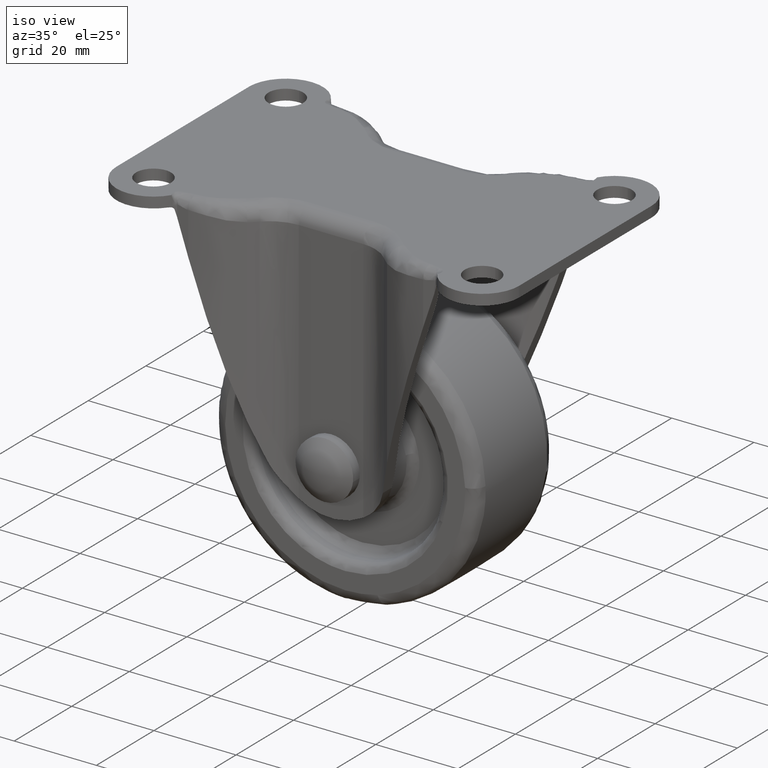
[diagram: clean part render]
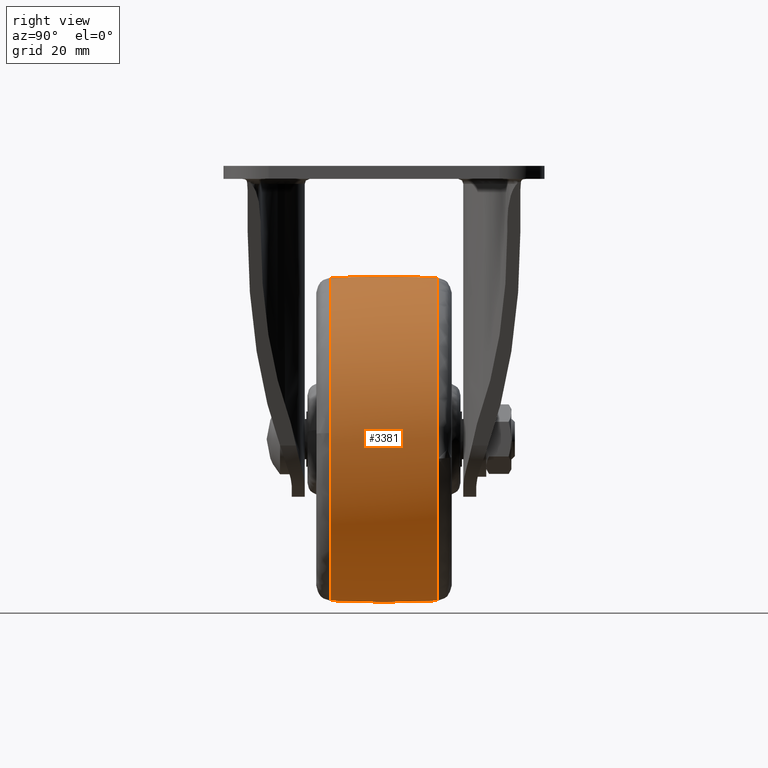
[diagram: tour spotlight — one face highlighted and labeled with its STEP entity id]
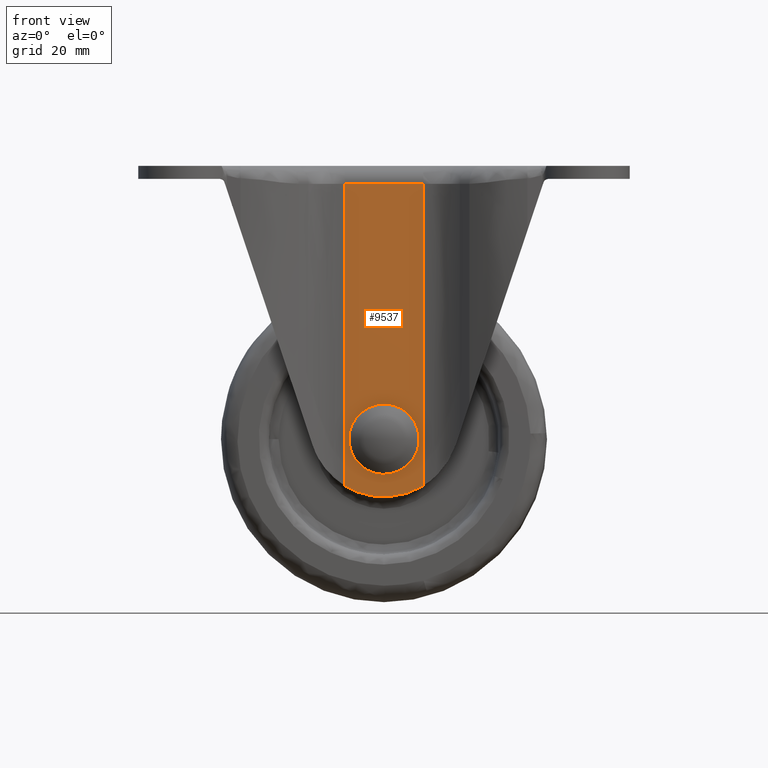
[diagram: tour spotlight — one face highlighted and labeled with its STEP entity id]
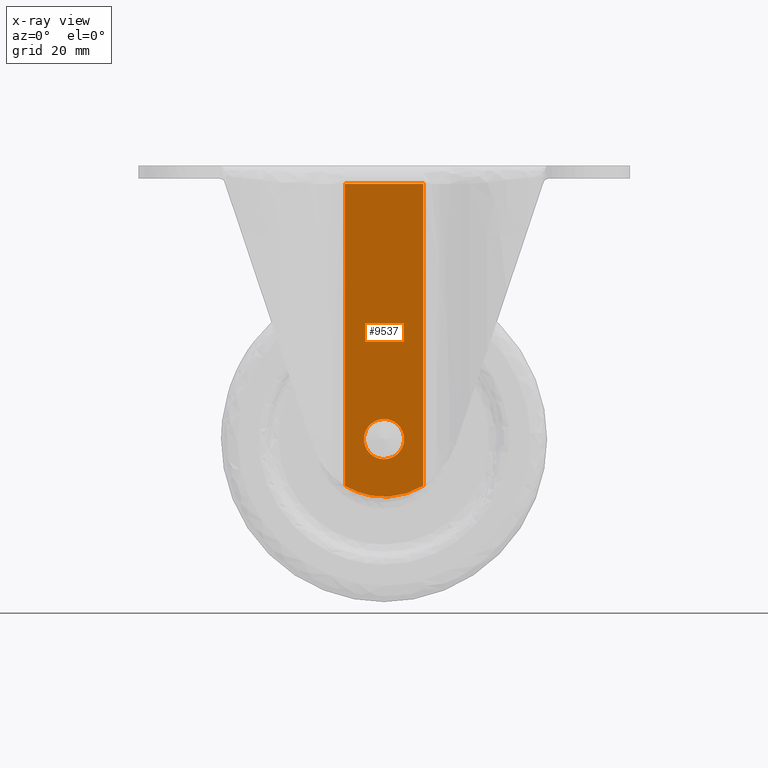
[diagram: x-ray of the same camera — body ghosted, this tour face saturated]
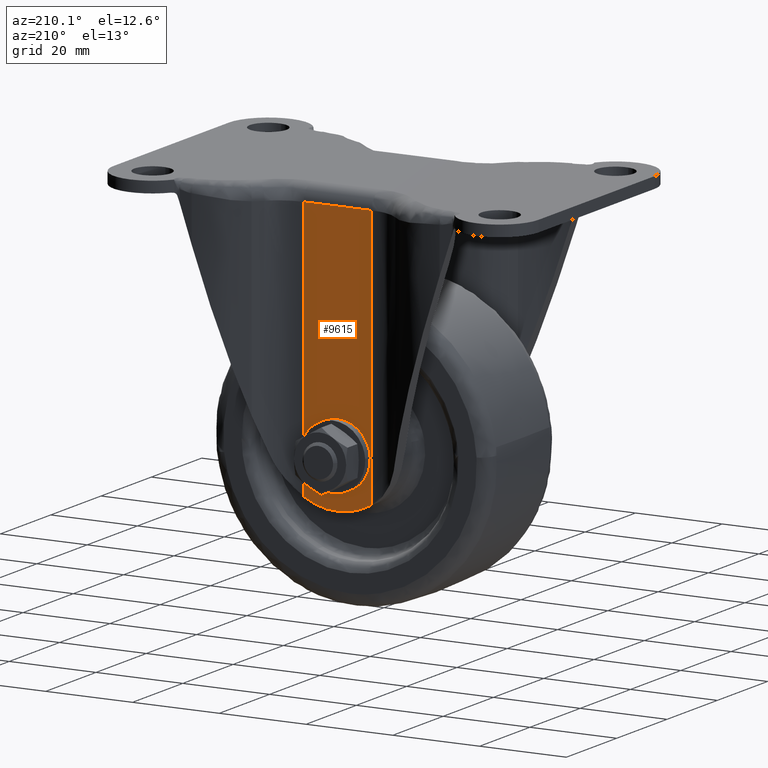
[diagram: tour spotlight — one face highlighted and labeled with its STEP entity id]
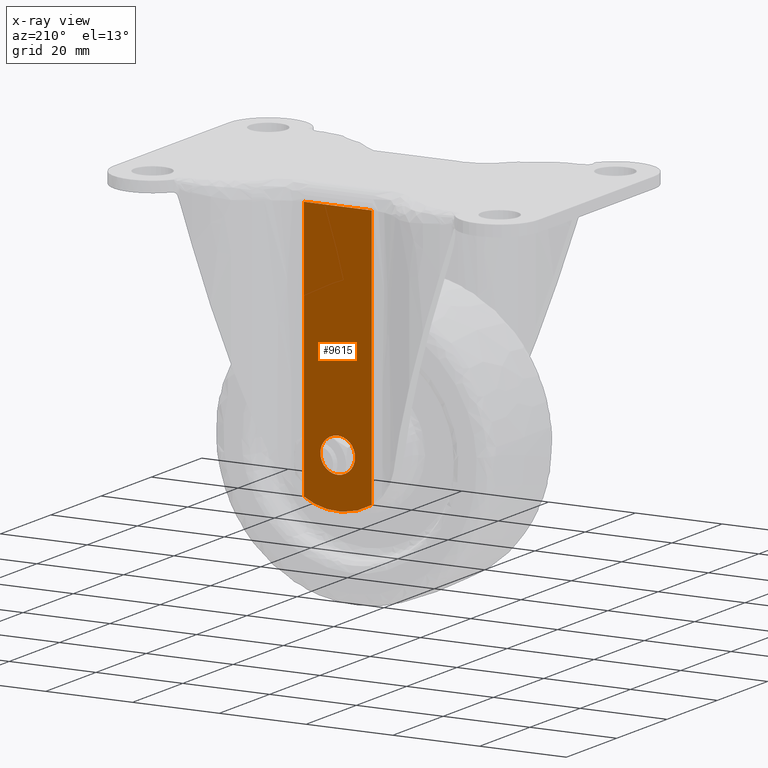
[diagram: x-ray of the same camera — body ghosted, this tour face saturated]
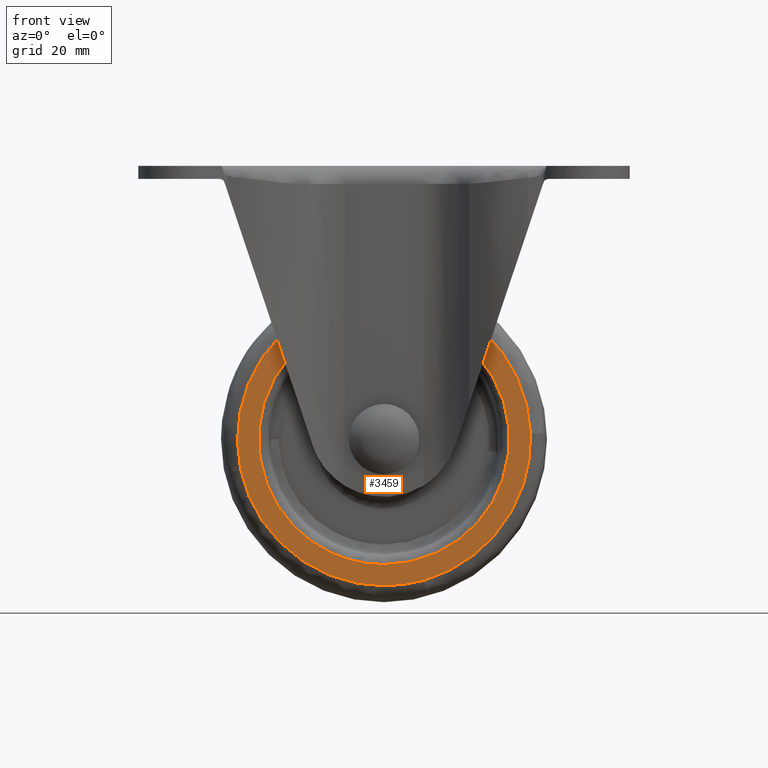
[diagram: tour spotlight — one face highlighted and labeled with its STEP entity id]
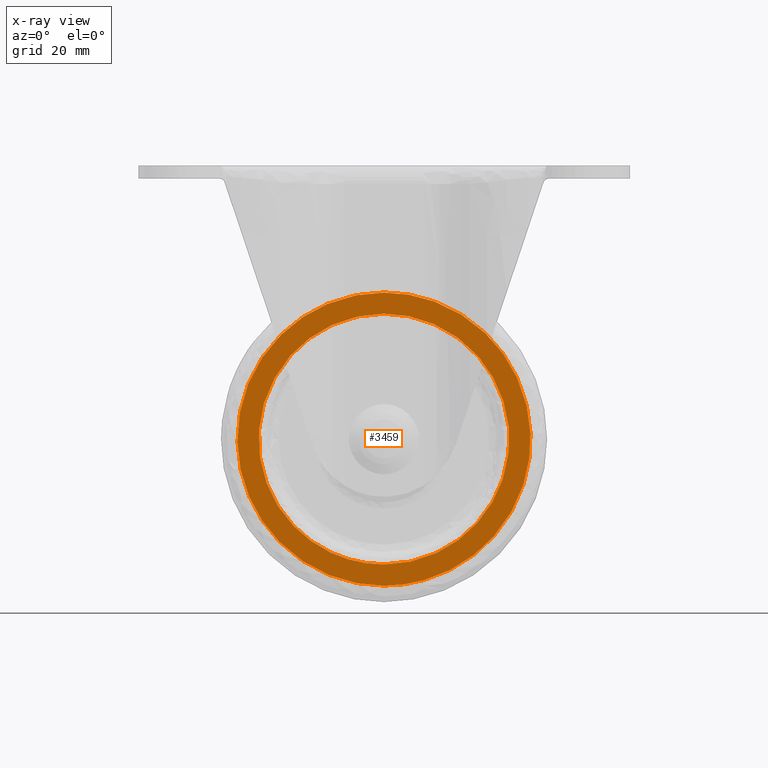
[diagram: x-ray of the same camera — body ghosted, this tour face saturated]
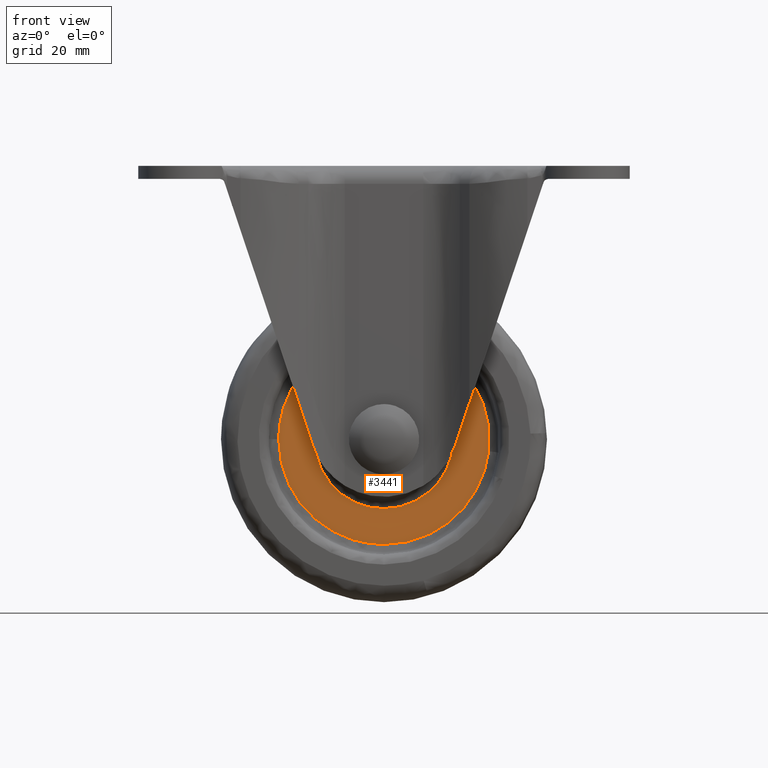
[diagram: tour spotlight — one face highlighted and labeled with its STEP entity id]
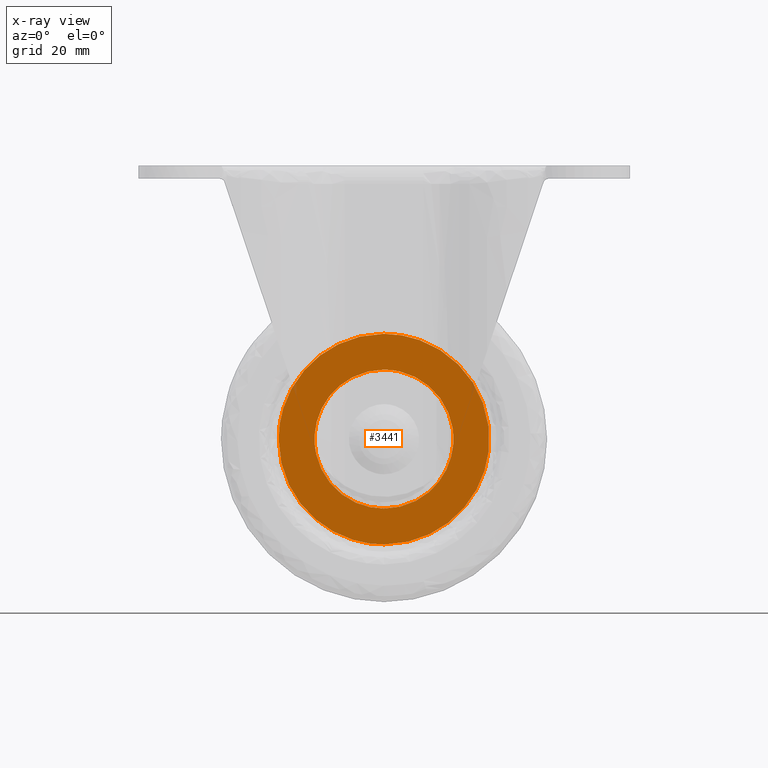
[diagram: x-ray of the same camera — body ghosted, this tour face saturated]
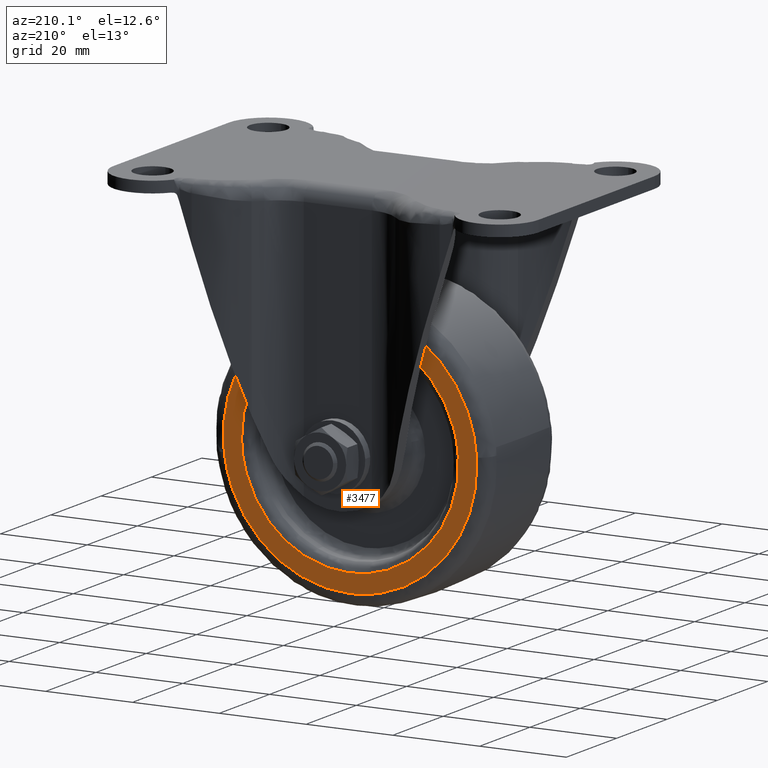
[diagram: tour spotlight — one face highlighted and labeled with its STEP entity id]
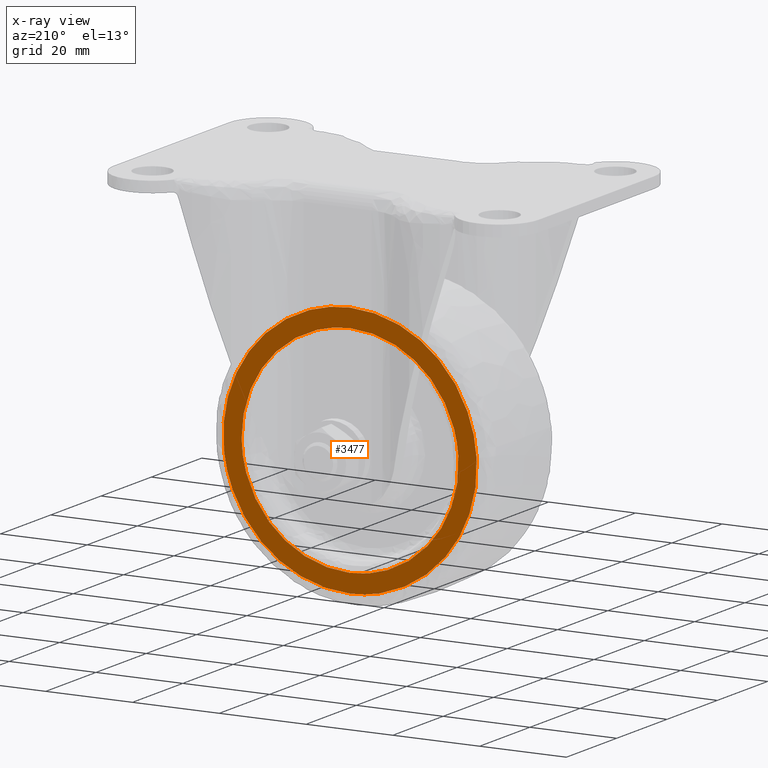
[diagram: x-ray of the same camera — body ghosted, this tour face saturated]
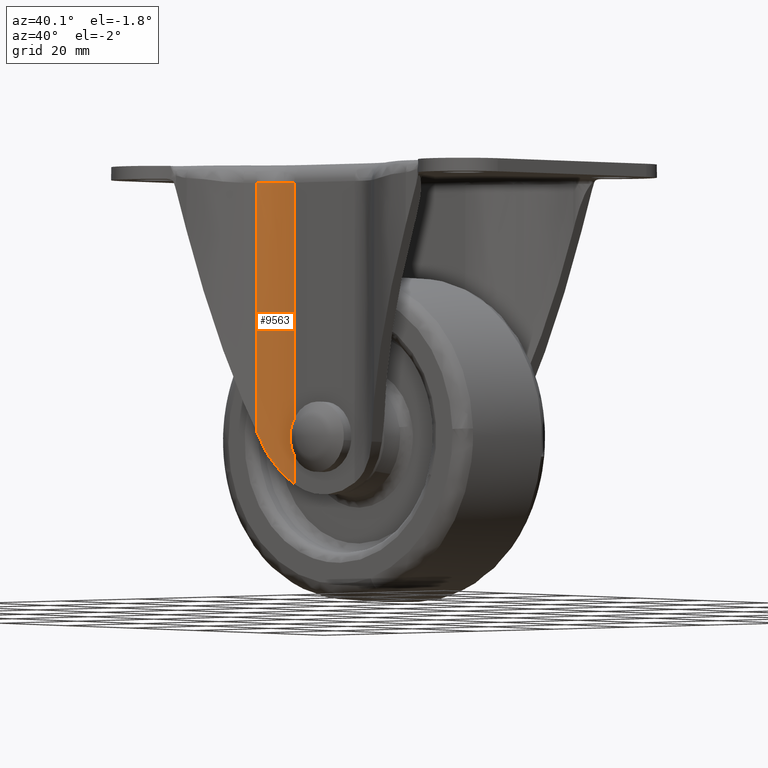
[diagram: tour spotlight — one face highlighted and labeled with its STEP entity id]
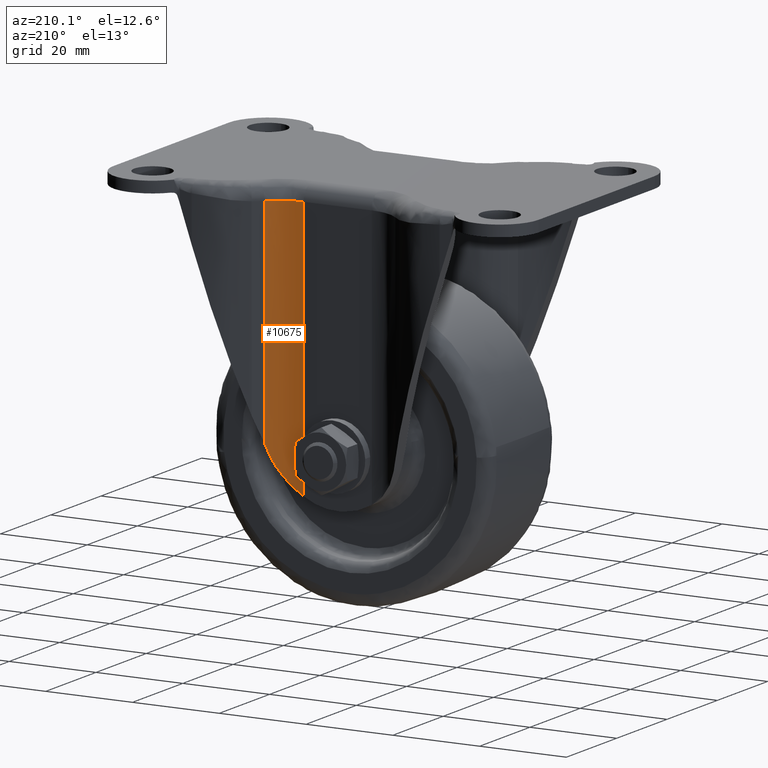
[diagram: tour spotlight — one face highlighted and labeled with its STEP entity id]
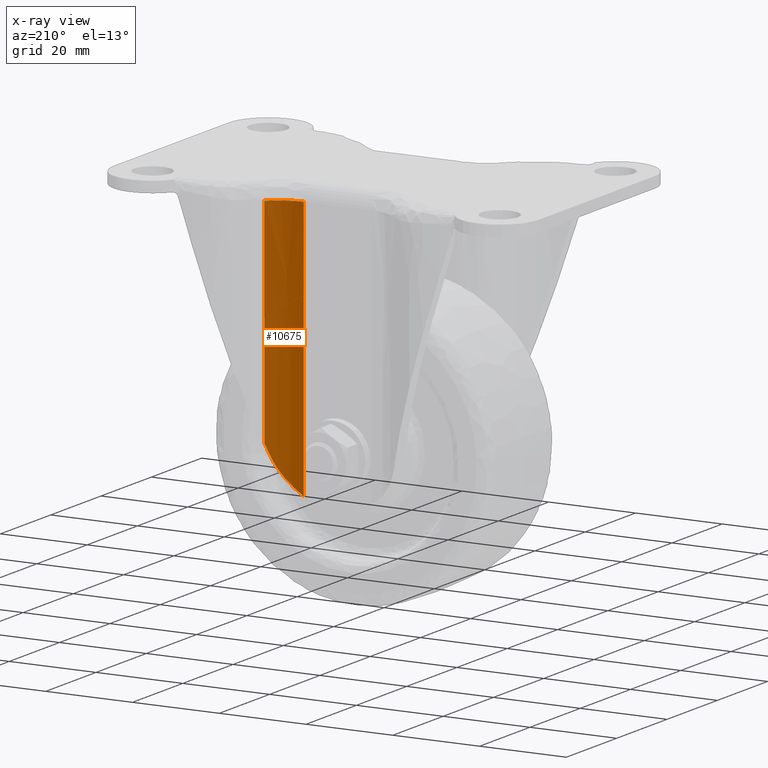
[diagram: x-ray of the same camera — body ghosted, this tour face saturated]
A machine part: a face-by-face anatomy tour. The part has 204 B-rep faces; the first image is the clean iso view, then the 8 largest visible faces are spotlighted one at a time (largest first), each with its STEP entity span.

Face 1 — right view, entity #3381. In plain terms, the highlighted face is a freeform B-spline surface patch.
Definition (entity closure, byte-faithful):
#2270=CARTESIAN_POINT('',(8.716848317631655,-10.659899442553820,-85.514009804543093));
#2271=VERTEX_POINT('',#2270);
#2285=CARTESIAN_POINT('',(32.192824167387677,-10.659899442543059,-53.285783842636647));
#2286=VERTEX_POINT('',#2285);
#2287=CARTESIAN_POINT('',(8.716848317631655,-10.659899442553824,-85.514009804543093));
#2288=CARTESIAN_POINT('',(32.215714313845503,-10.659899441852680,-78.909380096386755));
#2289=CARTESIAN_POINT('',(32.215714313845503,-10.659899441852680,-54.500000000000000));
#2290=CARTESIAN_POINT('',(32.215714313845503,-10.659899441852678,-53.892676161195816));
#2291=CARTESIAN_POINT('',(32.192824167387684,-10.659899442543063,-53.285783842636647));
#2299=(BOUNDED_CURVE()B_SPLINE_CURVE(2,(#2287,#2288,#2289,#2290,#2291),.UNSPECIFIED.,.F.,.U.)B_SPLINE_CURVE_WITH_KNOTS((3,2,3),(0.046107938914526,0.250000000000000,0.256613471417733),.UNSPECIFIED.)CURVE()GEOMETRIC_REPRESENTATION_ITEM()RATIONAL_B_SPLINE_CURVE((0.911887947010307,0.761125591752665,1.0,0.992251836275718,0.984913610626079))REPRESENTATION_ITEM(''));
#2300=EDGE_CURVE('',#2271,#2286,#2299,.T.);
#2399=CARTESIAN_POINT('',(0.0,-10.659899622363509,-22.284285695789279));
#2400=VERTEX_POINT('',#2399);
#2401=CARTESIAN_POINT('',(32.192824167387677,-10.659899442543061,-53.285783842636640));
#2402=CARTESIAN_POINT('',(31.023541231273981,-10.659899448532654,-22.284285686511033));
#2403=CARTESIAN_POINT('',(0.0,-10.659899622363509,-22.284285695789279));
#2411=(BOUNDED_CURVE()B_SPLINE_CURVE(2,(#2401,#2402,#2403),.UNSPECIFIED.,.F.,.U.)B_SPLINE_CURVE_WITH_KNOTS((3,3),(0.256613471417733,0.500000000000000),.UNSPECIFIED.)CURVE()GEOMETRIC_REPRESENTATION_ITEM()RATIONAL_B_SPLINE_CURVE((0.984913610626080,0.714854944910829,1.0))REPRESENTATION_ITEM(''));
#2412=EDGE_CURVE('',#2286,#2400,#2411,.T.);
#2414=CARTESIAN_POINT('',(-32.000243979703463,-10.659899441846189,-50.780237374402979));
#2415=VERTEX_POINT('',#2414);
#2429=CARTESIAN_POINT('',(0.0,-10.659899441852680,-86.715714313845510));
#2430=VERTEX_POINT('',#2429);
#2431=CARTESIAN_POINT('',(-32.000243979703455,-10.659899441846187,-50.780237374402986));
#2432=CARTESIAN_POINT('',(-32.215714313845503,-10.659899441852676,-52.633878038261237));
#2433=CARTESIAN_POINT('',(-32.215714313845503,-10.659899441852680,-54.500000000000000));
#2434=CARTESIAN_POINT('',(-32.215714313845510,-10.659899441852680,-86.715714313845510));
#2435=CARTESIAN_POINT('',(0.0,-10.659899441852680,-86.715714313845510));
#2443=(BOUNDED_CURVE()B_SPLINE_CURVE(2,(#2431,#2432,#2433,#2434,#2435),.UNSPECIFIED.,.F.,.U.)B_SPLINE_CURVE_WITH_KNOTS((3,2,3),(0.729999999998651,0.750000000000000,1.0),.UNSPECIFIED.)CURVE()GEOMETRIC_REPRESENTATION_ITEM()RATIONAL_B_SPLINE_CURVE((0.956886118188004,0.976568542493343,1.0,0.707106781186547,1.0))REPRESENTATION_ITEM(''));
#2444=EDGE_CURVE('',#2415,#2430,#2443,.T.);
#2446=CARTESIAN_POINT('',(0.0,-10.659899441852680,-86.715714313845510));
#2447=CARTESIAN_POINT('',(4.441257636872106,-10.659899441852684,-86.715714313845496));
#2448=CARTESIAN_POINT('',(8.716848317631655,-10.659899442553824,-85.514009804543093));
#2456=(BOUNDED_CURVE()B_SPLINE_CURVE(2,(#2446,#2447,#2448),.UNSPECIFIED.,.F.,.U.)B_SPLINE_CURVE_WITH_KNOTS((3,3),(0.0,0.046107938914526),.UNSPECIFIED.)CURVE()GEOMETRIC_REPRESENTATION_ITEM()RATIONAL_B_SPLINE_CURVE((1.0,0.945981189433882,0.911887947010308))REPRESENTATION_ITEM(''));
#2457=EDGE_CURVE('',#2430,#2271,#2456,.T.);
#2492=CARTESIAN_POINT('',(31.983825766345319,10.659901132118691,-58.358385336708537));
#2493=VERTEX_POINT('',#2492);
#2494=CARTESIAN_POINT('',(0.0,10.659904519073489,-22.284285957153141));
#2495=VERTEX_POINT('',#2494);
#2496=CARTESIAN_POINT('',(31.983825766345316,10.659901132118691,-58.358385336708537));
#2497=CARTESIAN_POINT('',(32.215714365336453,10.659901316556184,-56.436160990790952));
#2498=CARTESIAN_POINT('',(32.215714365336453,10.659901498115421,-54.500000161244799));
#2499=CARTESIAN_POINT('',(32.215714365336453,10.659904519073489,-22.284285957153145));
#2500=CARTESIAN_POINT('',(0.0,10.659904519073489,-22.284285957153141));
#2508=(BOUNDED_CURVE()B_SPLINE_CURVE(2,(#2496,#2497,#2498,#2499,#2500),.UNSPECIFIED.,.F.,.U.)B_SPLINE_CURVE_WITH_KNOTS((3,2,3),(0.229267597024985,0.250000000000000,0.500000000000000),.UNSPECIFIED.)CURVE()GEOMETRIC_REPRESENTATION_ITEM()RATIONAL_B_SPLINE_CURVE((0.955449599164907,0.975710479035641,1.0,0.707106781186547,1.0))REPRESENTATION_ITEM(''));
#2509=EDGE_CURVE('',#2493,#2495,#2508,.T.);
#2558=CARTESIAN_POINT('',(-32.152144012014283,10.659898477184811,-52.477158557965851));
#2559=VERTEX_POINT('',#2558);
#2573=CARTESIAN_POINT('',(-32.000244030849871,10.659898477150801,-50.780237368456362));
#2574=VERTEX_POINT('',#2573);
#2575=CARTESIAN_POINT('',(-32.000244030849878,10.659898477150803,-50.780237368456355));
#2576=CARTESIAN_POINT('',(-32.098637001431136,10.659898477153796,-51.626688978759717));
#2577=CARTESIAN_POINT('',(-32.152144012014283,10.659898477184818,-52.477158557965851));
#2585=(BOUNDED_CURVE()B_SPLINE_CURVE(2,(#2575,#2576,#2577),.UNSPECIFIED.,.F.,.U.)B_SPLINE_CURVE_WITH_KNOTS((3,3),(0.729999999998637,0.739031910739875),.UNSPECIFIED.)CURVE()GEOMETRIC_REPRESENTATION_ITEM()RATIONAL_B_SPLINE_CURVE((0.956886118187978,0.965774613162226,0.975427680452973))REPRESENTATION_ITEM(''));
#2586=EDGE_CURVE('',#2574,#2559,#2585,.T.);
#2627=CARTESIAN_POINT('',(0.0,10.659898477157361,-86.715714365336453));
#2628=VERTEX_POINT('',#2627);
#2629=CARTESIAN_POINT('',(0.0,10.659898477157361,-86.715714365336453));
#2630=CARTESIAN_POINT('',(28.562924924722971,10.659898477157359,-86.715714365336453));
#2631=CARTESIAN_POINT('',(31.983825766345316,10.659901132118691,-58.358385336708537));
#2639=(BOUNDED_CURVE()B_SPLINE_CURVE(2,(#2629,#2630,#2631),.UNSPECIFIED.,.F.,.U.)B_SPLINE_CURVE_WITH_KNOTS((3,3),(0.0,0.229267597024985),.UNSPECIFIED.)CURVE()GEOMETRIC_REPRESENTATION_ITEM()RATIONAL_B_SPLINE_CURVE((1.0,0.731396302150907,0.955449599164907))REPRESENTATION_ITEM(''));
#2640=EDGE_CURVE('',#2628,#2493,#2639,.T.);
#2642=CARTESIAN_POINT('',(-32.152144012014276,10.659898477184818,-52.477158557965851));
#2643=CARTESIAN_POINT('',(-32.215714365336453,10.659898477157359,-53.487580389532376));
#2644=CARTESIAN_POINT('',(-32.215714365336453,10.659898477157361,-54.500000000000000));
#2645=CARTESIAN_POINT('',(-32.215714365336453,10.659898477157359,-86.715714365336453));
#2646=CARTESIAN_POINT('',(0.0,10.659898477157361,-86.715714365336453));
#2654=(BOUNDED_CURVE()B_SPLINE_CURVE(2,(#2642,#2643,#2644,#2645,#2646),.UNSPECIFIED.,.F.,.U.)B_SPLINE_CURVE_WITH_KNOTS((3,2,3),(0.739031910739874,0.750000000000000,1.0),.UNSPECIFIED.)CURVE()GEOMETRIC_REPRESENTATION_ITEM()RATIONAL_B_SPLINE_CURVE((0.975427680452972,0.987150084129474,1.0,0.707106781186547,1.0))REPRESENTATION_ITEM(''));
#2655=EDGE_CURVE('',#2559,#2628,#2654,.T.);
#3310=CARTESIAN_POINT('',(-31.941056166359630,-11.723079913277171,-50.787118264817714));
#3311=CARTESIAN_POINT('',(-32.624788837057352,-3.235687E-014,-50.707640036810496));
#3312=CARTESIAN_POINT('',(-31.941056166359630,11.723079913277102,-50.787118264817714));
#3313=CARTESIAN_POINT('',(-32.156127873268424,-11.723079913277170,-52.637330030270427));
#3314=CARTESIAN_POINT('',(-32.844464385235234,-3.566781E-014,-52.597457575634031));
#3315=CARTESIAN_POINT('',(-32.156127873268446,11.723079913277104,-52.637330030270434));
#3316=CARTESIAN_POINT('',(-32.156127873268439,-11.723079913277164,-54.500000000000014));
#3317=CARTESIAN_POINT('',(-32.844464385235220,-2.902672E-014,-54.500000000000000));
#3318=CARTESIAN_POINT('',(-32.156127873268439,11.723079913277111,-54.500000000000014));
#3319=CARTESIAN_POINT('',(-32.156127873268424,-11.723079913277177,-86.656127873268431));
#3320=CARTESIAN_POINT('',(-32.844464385235227,-3.968165E-014,-87.344464385235227));
#3321=CARTESIAN_POINT('',(-32.156127873268431,11.723079913277099,-86.656127873268446));
#3322=CARTESIAN_POINT('',(0.0,-11.723079913277164,-86.656127873268431));
#3323=CARTESIAN_POINT('',(0.0,-2.902672E-014,-87.344464385235227));
#3324=CARTESIAN_POINT('',(0.0,11.723079913277111,-86.656127873268431));
#3325=CARTESIAN_POINT('',(32.156127873268439,-11.723079913277177,-86.656127873268431));
#3326=CARTESIAN_POINT('',(32.844464385235227,-3.968165E-014,-87.344464385235213));
#3327=CARTESIAN_POINT('',(32.156127873268431,11.723079913277099,-86.656127873268417));
#3328=CARTESIAN_POINT('',(32.156127873268439,-11.723079913277164,-54.500000000000014));
#3329=CARTESIAN_POINT('',(32.844464385235220,-2.902672E-014,-54.500000000000000));
#3330=CARTESIAN_POINT('',(32.156127873268439,11.723079913277111,-54.500000000000014));
#3331=CARTESIAN_POINT('',(32.156127873268424,-11.723079913277177,-22.343872126731565));
#3332=CARTESIAN_POINT('',(32.844464385235227,-3.968165E-014,-21.655535614764780));
#3333=CARTESIAN_POINT('',(32.156127873268431,11.723079913277099,-22.343872126731569));
#3334=CARTESIAN_POINT('',(0.0,-11.723079913277164,-22.343872126731565));
#3335=CARTESIAN_POINT('',(0.0,-2.902672E-014,-21.655535614764773));
#3336=CARTESIAN_POINT('',(0.0,11.723079913277111,-22.343872126731565));
#3344=(BOUNDED_SURFACE()B_SPLINE_SURFACE(2,2,((#3310,#3313,#3316,#3319,#3322,#3325,#3328,#3331,#3334),(#3311,#3314,#3317,#3320,#3323,#3326,#3329,#3332,#3335),(#3312,#3315,#3318,#3321,#3324,#3327,#3330,#3333,#3336)),.UNSPECIFIED.,.F.,.F.,.U.)B_SPLINE_SURFACE_WITH_KNOTS((3,3),(3,2,2,2,3),(0.0,23.466333371461872),(0.0,4.307820149998688,58.155583258501061,112.003346367003400,165.851109475505810),.UNSPECIFIED.)GEOMETRIC_REPRESENTATION_ITEM()RATIONAL_B_SPLINE_SURFACE(((0.879895557524248,0.897994340967783,0.919540510877728,0.650213330817384,0.919540510877728,0.650213330817384,0.919540510877728,0.650213330817384,0.919540510877728),(0.878382699740911,0.896450364848676,0.917959489122272,0.649095379612897,0.917959489122272,0.649095379612897,0.917959489122272,0.649095379612897,0.917959489122272),(0.879895557524248,0.897994340967783,0.919540510877728,0.650213330817384,0.919540510877728,0.650213330817384,0.919540510877728,0.650213330817384,0.919540510877728)))REPRESENTATION_ITEM('')SURFACE());
#3345=ORIENTED_EDGE('',*,*,#2444,.F.);
#3346=CARTESIAN_POINT('',(-32.000243979703463,-10.659899441846187,-50.780237374402979));
#3347=CARTESIAN_POINT('',(-32.565414476068568,-0.000000483721906,-50.714540997631907));
#3348=CARTESIAN_POINT('',(-32.000244030849871,10.659898477150801,-50.780237368456341));
#3356=(BOUNDED_CURVE()B_SPLINE_CURVE(2,(#3346,#3347,#3348),.UNSPECIFIED.,.F.,.U.)B_SPLINE_CURVE_WITH_KNOTS((3,3),(0.455160694111944,0.544839301824430),.UNSPECIFIED.)CURVE()GEOMETRIC_REPRESENTATION_ITEM()RATIONAL_B_SPLINE_CURVE((0.879764382140245,0.878513860091758,0.879764382026914))REPRESENTATION_ITEM(''));
#3357=EDGE_CURVE('',#2415,#2574,#3356,.T.);
#3358=ORIENTED_EDGE('',*,*,#3357,.T.);
#3359=ORIENTED_EDGE('',*,*,#2586,.T.);
#3360=ORIENTED_EDGE('',*,*,#2655,.T.);
#3361=ORIENTED_EDGE('',*,*,#2640,.T.);
#3362=ORIENTED_EDGE('',*,*,#2509,.T.);
#3363=CARTESIAN_POINT('',(0.0,-10.659899622363508,-22.284285695789276));
#3364=CARTESIAN_POINT('',(0.0,0.000002364817637,-21.715309501336133));
#3365=CARTESIAN_POINT('',(0.0,10.659904519073489,-22.284285957153134));
#3373=(BOUNDED_CURVE()B_SPLINE_CURVE(2,(#3363,#3364,#3365),.UNSPECIFIED.,.F.,.U.)B_SPLINE_CURVE_WITH_KNOTS((3,3),(0.455160692591143,0.544839327275097),.UNSPECIFIED.)CURVE()GEOMETRIC_REPRESENTATION_ITEM()RATIONAL_B_SPLINE_CURVE((0.919403433133895,0.918096566576599,0.919403433712907))REPRESENTATION_ITEM(''));
#3374=EDGE_CURVE('',#2400,#2495,#3373,.T.);
#3375=ORIENTED_EDGE('',*,*,#3374,.F.);
#3376=ORIENTED_EDGE('',*,*,#2412,.F.);
#3377=ORIENTED_EDGE('',*,*,#2300,.F.);
#3378=ORIENTED_EDGE('',*,*,#2457,.F.);
#3379=EDGE_LOOP('',(#3345,#3358,#3359,#3360,#3361,#3362,#3375,#3376,#3377,#3378));
#3380=FACE_OUTER_BOUND('',#3379,.T.);
#3381=ADVANCED_FACE('',(#3380),#3344,.T.);

Face 2 — front view, entity #9537. An x-ray twin of the same camera follows (body ghosted, this face saturated) — the face is partly hidden behind the body. In plain terms, the highlighted face is a freeform B-spline surface patch.
Definition (entity closure, byte-faithful):
#3632=CARTESIAN_POINT('',(3.972038105441392,-18.399999999999999,-54.972136938738700));
#3633=VERTEX_POINT('',#3632);
#3639=CARTESIAN_POINT('',(0.0,-18.399999999999999,-50.500000000000000));
#3640=VERTEX_POINT('',#3639);
#3641=CARTESIAN_POINT('',(3.972038105441392,-18.399999999999999,-54.972136938738700));
#3642=CARTESIAN_POINT('',(4.0,-18.399999999999999,-54.736896478720489));
#3643=CARTESIAN_POINT('',(4.0,-18.399999999999999,-54.500000000000000));
#3644=CARTESIAN_POINT('',(4.000000000000000,-18.399999999999991,-50.499999999999993));
#3645=CARTESIAN_POINT('',(0.0,-18.399999999999999,-50.500000000000000));
#3653=(BOUNDED_CURVE()B_SPLINE_CURVE(2,(#3641,#3642,#3643,#3644,#3645),.UNSPECIFIED.,.F.,.U.)B_SPLINE_CURVE_WITH_KNOTS((3,2,3),(0.229562473506142,0.250000000000000,0.500000000000000),.UNSPECIFIED.)CURVE()GEOMETRIC_REPRESENTATION_ITEM()RATIONAL_B_SPLINE_CURVE((0.956026754169261,0.976055948322515,1.0,0.707106781186548,1.0))REPRESENTATION_ITEM(''));
#3654=EDGE_CURVE('',#3633,#3640,#3653,.T.);
#3656=CARTESIAN_POINT('',(-3.992539193676789,-18.399999999999999,-54.255805841685977));
#3657=VERTEX_POINT('',#3656);
#3658=CARTESIAN_POINT('',(0.0,-18.399999999999999,-50.500000000000000));
#3659=CARTESIAN_POINT('',(-3.762824267293059,-18.399999999999995,-50.500000000000000));
#3660=CARTESIAN_POINT('',(-3.992539193676789,-18.399999999999999,-54.255805841685991));
#3668=(BOUNDED_CURVE()B_SPLINE_CURVE(2,(#3658,#3659,#3660),.UNSPECIFIED.,.F.,.U.)B_SPLINE_CURVE_WITH_KNOTS((3,3),(0.500000000000000,0.739332962226877),.UNSPECIFIED.)CURVE()GEOMETRIC_REPRESENTATION_ITEM()RATIONAL_B_SPLINE_CURVE((1.0,0.719603993300846,0.976072041640858))REPRESENTATION_ITEM(''));
#3669=EDGE_CURVE('',#3640,#3657,#3668,.T.);
#3743=CARTESIAN_POINT('',(0.0,-18.399999999999999,-58.500000000000000));
#3744=VERTEX_POINT('',#3743);
#3745=CARTESIAN_POINT('',(-3.992539193676790,-18.399999999999995,-54.255805841685991));
#3746=CARTESIAN_POINT('',(-4.0,-18.399999999999999,-54.377788946630567));
#3747=CARTESIAN_POINT('',(-4.0,-18.399999999999999,-54.500000000000000));
#3748=CARTESIAN_POINT('',(-4.000000000000000,-18.399999999999991,-58.499999999999993));
#3749=CARTESIAN_POINT('',(0.0,-18.399999999999999,-58.500000000000000));
#3757=(BOUNDED_CURVE()B_SPLINE_CURVE(2,(#3745,#3746,#3747,#3748,#3749),.UNSPECIFIED.,.F.,.U.)B_SPLINE_CURVE_WITH_KNOTS((3,2,3),(0.739332962226877,0.750000000000000,1.0),.UNSPECIFIED.)CURVE()GEOMETRIC_REPRESENTATION_ITEM()RATIONAL_B_SPLINE_CURVE((0.976072041640859,0.987502787885702,1.0,0.707106781186548,1.0))REPRESENTATION_ITEM(''));
#3758=EDGE_CURVE('',#3657,#3744,#3757,.T.);
#3760=CARTESIAN_POINT('',(0.0,-18.399999999999999,-58.500000000000000));
#3761=CARTESIAN_POINT('',(3.552698103604312,-18.399999999999995,-58.499999999999993));
#3762=CARTESIAN_POINT('',(3.972038105441392,-18.399999999999999,-54.972136938738700));
#3770=(BOUNDED_CURVE()B_SPLINE_CURVE(2,(#3760,#3761,#3762),.UNSPECIFIED.,.F.,.U.)B_SPLINE_CURVE_WITH_KNOTS((3,3),(0.0,0.229562473506142),.UNSPECIFIED.)CURVE()GEOMETRIC_REPRESENTATION_ITEM()RATIONAL_B_SPLINE_CURVE((1.0,0.731050832864033,0.956026754169261))REPRESENTATION_ITEM(''));
#3771=EDGE_CURVE('',#3744,#3633,#3770,.T.);
#5762=CARTESIAN_POINT('',(7.828796000000181,-18.399999999999999,-3.600000000000050));
#5763=VERTEX_POINT('',#5762);
#5825=CARTESIAN_POINT('',(-7.828835999999799,-18.399999999999999,-3.600000000000050));
#5826=VERTEX_POINT('',#5825);
#5842=CARTESIAN_POINT('',(7.828796000000181,-18.399999999999999,-3.600000000000050));
#5843=CARTESIAN_POINT('',(-7.828835999999799,-18.399999999999999,-3.600000000000050));
#5844=QUASI_UNIFORM_CURVE('',1,(#5842,#5843),.UNSPECIFIED.,.F.,.U.);
#5845=EDGE_CURVE('',#5763,#5826,#5844,.T.);
#8323=CARTESIAN_POINT('',(-7.828835999999799,-18.399999999999999,-63.794895458792993));
#8324=VERTEX_POINT('',#8323);
#8439=CARTESIAN_POINT('',(7.828796000000181,-18.399999999999999,-63.794919933581397));
#8440=VERTEX_POINT('',#8439);
#8471=CARTESIAN_POINT('',(7.828796000000209,-18.399999999999999,-63.794919933581440));
#8472=CARTESIAN_POINT('',(-0.000027487690727,-18.400000000000006,-68.585123124617780));
#8473=CARTESIAN_POINT('',(-7.828835999999803,-18.399999999999999,-63.794895458793022));
#8481=(BOUNDED_CURVE()B_SPLINE_CURVE(2,(#8471,#8472,#8473),.UNSPECIFIED.,.F.,.U.)CURVE()GEOMETRIC_REPRESENTATION_ITEM()QUASI_UNIFORM_CURVE()RATIONAL_B_SPLINE_CURVE((1.0,0.852993786711757,1.0))REPRESENTATION_ITEM(''));
#8482=EDGE_CURVE('',#8440,#8324,#8481,.T.);
#9512=CARTESIAN_POINT('',(-8.610934688052272,-18.399999999999999,-0.483119713382858));
#9513=CARTESIAN_POINT('',(-8.610934688052272,-18.399999999999999,-69.116877834727248));
#9514=CARTESIAN_POINT('',(8.610895108023069,-18.399999999999999,-0.483119713382858));
#9515=CARTESIAN_POINT('',(8.610895108023069,-18.399999999999999,-69.116877834727248));
#9516=B_SPLINE_SURFACE_WITH_KNOTS('',1,1,((#9512,#9514),(#9513,#9515)),.UNSPECIFIED.,.F.,.F.,.U.,(2,2),(2,2),(0.0,68.633758121344385),(0.0,17.221829796075340),.UNSPECIFIED.);
#9517=CARTESIAN_POINT('',(7.828796000000181,-18.399999999999999,-63.794919933581397));
#9518=CARTESIAN_POINT('',(7.828796000000181,-18.399999999999999,-3.600000000000050));
#9519=QUASI_UNIFORM_CURVE('',1,(#9517,#9518),.UNSPECIFIED.,.F.,.U.);
#9520=EDGE_CURVE('',#8440,#5763,#9519,.T.);
#9521=ORIENTED_EDGE('',*,*,#9520,.T.);
#9522=ORIENTED_EDGE('',*,*,#5845,.T.);
#9523=CARTESIAN_POINT('',(-7.828835999999799,-18.399999999999999,-63.794895458792993));
#9524=CARTESIAN_POINT('',(-7.828835999999799,-18.399999999999999,-3.600000000000050));
#9525=QUASI_UNIFORM_CURVE('',1,(#9523,#9524),.UNSPECIFIED.,.F.,.U.);
#9526=EDGE_CURVE('',#8324,#5826,#9525,.T.);
#9527=ORIENTED_EDGE('',*,*,#9526,.F.);
#9528=ORIENTED_EDGE('',*,*,#8482,.F.);
#9529=EDGE_LOOP('',(#9521,#9522,#9527,#9528));
#9530=FACE_OUTER_BOUND('',#9529,.T.);
#9531=ORIENTED_EDGE('',*,*,#3669,.F.);
#9532=ORIENTED_EDGE('',*,*,#3654,.F.);
#9533=ORIENTED_EDGE('',*,*,#3771,.F.);
#9534=ORIENTED_EDGE('',*,*,#3758,.F.);
#9535=EDGE_LOOP('',(#9531,#9532,#9533,#9534));
#9536=FACE_BOUND('',#9535,.T.);
#9537=ADVANCED_FACE('',(#9530,#9536),#9516,.T.);

Face 3 — auxiliary view, entity #9615. An x-ray twin of the same camera follows (body ghosted, this face saturated) — the face is partly hidden behind the body. In plain terms, the highlighted face is a freeform B-spline surface patch.
Definition (entity closure, byte-faithful):
#3829=CARTESIAN_POINT('',(-3.987669334926362,18.399999999999999,-54.813836382989507));
#3830=VERTEX_POINT('',#3829);
#3836=CARTESIAN_POINT('',(0.0,18.399999999999999,-50.500000000000000));
#3837=VERTEX_POINT('',#3836);
#3838=CARTESIAN_POINT('',(-3.987669334926362,18.399999999999999,-54.813836382989521));
#3839=CARTESIAN_POINT('',(-4.000000000000000,18.400000000000002,-54.657160428109165));
#3840=CARTESIAN_POINT('',(-4.0,18.399999999999999,-54.500000000000000));
#3841=CARTESIAN_POINT('',(-4.000000000000000,18.399999999999991,-50.499999999999993));
#3842=CARTESIAN_POINT('',(0.0,18.399999999999999,-50.500000000000000));
#3850=(BOUNDED_CURVE()B_SPLINE_CURVE(2,(#3838,#3839,#3840,#3841,#3842),.UNSPECIFIED.,.F.,.U.)B_SPLINE_CURVE_WITH_KNOTS((3,2,3),(0.736331300626049,0.750000000000000,1.0),.UNSPECIFIED.)CURVE()GEOMETRIC_REPRESENTATION_ITEM()RATIONAL_B_SPLINE_CURVE((0.969723356157797,0.983986122573481,1.0,0.707106781186548,1.0))REPRESENTATION_ITEM(''));
#3851=EDGE_CURVE('',#3830,#3837,#3850,.T.);
#3853=CARTESIAN_POINT('',(3.987669334926362,18.399999999999999,-54.186163617010493));
#3854=VERTEX_POINT('',#3853);
#3855=CARTESIAN_POINT('',(0.0,18.399999999999999,-50.500000000000000));
#3856=CARTESIAN_POINT('',(3.697561966487483,18.399999999999999,-50.500000000000007));
#3857=CARTESIAN_POINT('',(3.987669334926362,18.399999999999999,-54.186163617010486));
#3865=(BOUNDED_CURVE()B_SPLINE_CURVE(2,(#3855,#3856,#3857),.UNSPECIFIED.,.F.,.U.)B_SPLINE_CURVE_WITH_KNOTS((3,3),(0.0,0.236331300626049),.UNSPECIFIED.)CURVE()GEOMETRIC_REPRESENTATION_ITEM()RATIONAL_B_SPLINE_CURVE((1.0,0.723120658613067,0.969723356157796))REPRESENTATION_ITEM(''));
#3866=EDGE_CURVE('',#3837,#3854,#3865,.T.);
#3912=CARTESIAN_POINT('',(0.0,18.399999999999999,-58.500000000000000));
#3913=VERTEX_POINT('',#3912);
#3914=CARTESIAN_POINT('',(3.987669334926362,18.399999999999991,-54.186163617010493));
#3915=CARTESIAN_POINT('',(4.0,18.399999999999995,-54.342839571890828));
#3916=CARTESIAN_POINT('',(4.0,18.399999999999999,-54.500000000000000));
#3917=CARTESIAN_POINT('',(4.000000000000000,18.399999999999991,-58.499999999999993));
#3918=CARTESIAN_POINT('',(0.0,18.399999999999999,-58.500000000000000));
#3926=(BOUNDED_CURVE()B_SPLINE_CURVE(2,(#3914,#3915,#3916,#3917,#3918),.UNSPECIFIED.,.F.,.U.)B_SPLINE_CURVE_WITH_KNOTS((3,2,3),(0.236331300626049,0.250000000000000,0.500000000000000),.UNSPECIFIED.)CURVE()GEOMETRIC_REPRESENTATION_ITEM()RATIONAL_B_SPLINE_CURVE((0.969723356157796,0.983986122573481,1.0,0.707106781186548,1.0))REPRESENTATION_ITEM(''));
#3927=EDGE_CURVE('',#3854,#3913,#3926,.T.);
#3929=CARTESIAN_POINT('',(0.0,18.399999999999999,-58.500000000000000));
#3930=CARTESIAN_POINT('',(-3.697561966487483,18.399999999999995,-58.499999999999993));
#3931=CARTESIAN_POINT('',(-3.987669334926362,18.399999999999999,-54.813836382989521));
#3939=(BOUNDED_CURVE()B_SPLINE_CURVE(2,(#3929,#3930,#3931),.UNSPECIFIED.,.F.,.U.)B_SPLINE_CURVE_WITH_KNOTS((3,3),(0.500000000000000,0.736331300626049),.UNSPECIFIED.)CURVE()GEOMETRIC_REPRESENTATION_ITEM()RATIONAL_B_SPLINE_CURVE((1.0,0.723120658613067,0.969723356157796))REPRESENTATION_ITEM(''));
#3940=EDGE_CURVE('',#3913,#3830,#3939,.T.);
#5015=CARTESIAN_POINT('',(-7.828835999999799,18.399999999999999,-3.600000000000050));
#5016=VERTEX_POINT('',#5015);
#5078=CARTESIAN_POINT('',(7.828796000000181,18.399999999999999,-3.600000000000050));
#5079=VERTEX_POINT('',#5078);
#5095=CARTESIAN_POINT('',(-7.828835999999799,18.399999999999999,-3.600000000000050));
#5096=CARTESIAN_POINT('',(7.828796000000181,18.399999999999999,-3.600000000000050));
#5097=QUASI_UNIFORM_CURVE('',1,(#5095,#5096),.UNSPECIFIED.,.F.,.U.);
#5098=EDGE_CURVE('',#5016,#5079,#5097,.T.);
#8825=CARTESIAN_POINT('',(7.828796000000181,18.399999999999999,-63.794919933581397));
#8826=VERTEX_POINT('',#8825);
#8935=CARTESIAN_POINT('',(-7.828835999999799,18.399999999999999,-63.794895458792993));
#8936=VERTEX_POINT('',#8935);
#8964=CARTESIAN_POINT('',(-7.828835999999813,18.399999999999999,-63.794895458793022));
#8965=CARTESIAN_POINT('',(-0.000027487690738,18.399999999999995,-68.585123124617780));
#8966=CARTESIAN_POINT('',(7.828796000000204,18.399999999999999,-63.794919933581440));
#8974=(BOUNDED_CURVE()B_SPLINE_CURVE(2,(#8964,#8965,#8966),.UNSPECIFIED.,.F.,.U.)CURVE()GEOMETRIC_REPRESENTATION_ITEM()QUASI_UNIFORM_CURVE()RATIONAL_B_SPLINE_CURVE((1.0,0.852993786711757,1.0))REPRESENTATION_ITEM(''));
#8975=EDGE_CURVE('',#8936,#8826,#8974,.T.);
#9584=CARTESIAN_POINT('',(-7.828835999999799,18.399999999999999,-63.794895458792993));
#9585=CARTESIAN_POINT('',(-7.828835999999799,18.399999999999999,-3.600000000000050));
#9586=QUASI_UNIFORM_CURVE('',1,(#9584,#9585),.UNSPECIFIED.,.F.,.U.);
#9587=EDGE_CURVE('',#8936,#5016,#9586,.T.);
#9594=CARTESIAN_POINT('',(-8.610934688052270,18.399999999999999,-69.116880233530182));
#9595=CARTESIAN_POINT('',(-8.610934688052270,18.399999999999999,-0.483118430381298));
#9596=CARTESIAN_POINT('',(8.610895108023069,18.399999999999999,-69.116880233530182));
#9597=CARTESIAN_POINT('',(8.610895108023069,18.399999999999999,-0.483118430381298));
#9598=B_SPLINE_SURFACE_WITH_KNOTS('',1,1,((#9594,#9596),(#9595,#9597)),.UNSPECIFIED.,.F.,.F.,.U.,(2,2),(2,2),(0.0,68.633761803148886),(0.0,17.221829796075340),.UNSPECIFIED.);
#9599=ORIENTED_EDGE('',*,*,#9587,.T.);
#9600=ORIENTED_EDGE('',*,*,#5098,.T.);
#9601=CARTESIAN_POINT('',(7.828796000000181,18.399999999999999,-63.794919933581397));
#9602=CARTESIAN_POINT('',(7.828796000000181,18.399999999999999,-3.600000000000050));
#9603=QUASI_UNIFORM_CURVE('',1,(#9601,#9602),.UNSPECIFIED.,.F.,.U.);
#9604=EDGE_CURVE('',#8826,#5079,#9603,.T.);
#9605=ORIENTED_EDGE('',*,*,#9604,.F.);
#9606=ORIENTED_EDGE('',*,*,#8975,.F.);
#9607=EDGE_LOOP('',(#9599,#9600,#9605,#9606));
#9608=FACE_OUTER_BOUND('',#9607,.T.);
#9609=ORIENTED_EDGE('',*,*,#3940,.F.);
#9610=ORIENTED_EDGE('',*,*,#3927,.F.);
#9611=ORIENTED_EDGE('',*,*,#3866,.F.);
#9612=ORIENTED_EDGE('',*,*,#3851,.F.);
#9613=EDGE_LOOP('',(#9609,#9610,#9611,#9612));
#9614=FACE_BOUND('',#9613,.T.);
#9615=ADVANCED_FACE('',(#9608,#9614),#9598,.T.);

Face 4 — front view, entity #3459. An x-ray twin of the same camera follows (body ghosted, this face saturated) — the face is partly hidden behind the body. In plain terms, the highlighted face is a freeform B-spline surface patch.
Definition (entity closure, byte-faithful):
#2095=CARTESIAN_POINT('',(23.698437999313789,-13.500000000000000,-62.461409188835148));
#2096=VERTEX_POINT('',#2095);
#2112=CARTESIAN_POINT('',(0.0,-13.500000000000000,-29.500000000000000));
#2113=VERTEX_POINT('',#2112);
#2114=CARTESIAN_POINT('',(23.698437999313782,-13.499999999999998,-62.461409188835148));
#2115=CARTESIAN_POINT('',(25.0,-13.500000000000000,-58.587096792254442));
#2116=CARTESIAN_POINT('',(25.0,-13.500000000000000,-54.500000000000000));
#2117=CARTESIAN_POINT('',(25.000000000000004,-13.500000000000000,-29.500000000000000));
#2118=CARTESIAN_POINT('',(0.0,-13.500000000000000,-29.500000000000000));
#2126=(BOUNDED_CURVE()B_SPLINE_CURVE(2,(#2114,#2115,#2116,#2117,#2118),.UNSPECIFIED.,.F.,.U.)B_SPLINE_CURVE_WITH_KNOTS((3,2,3),(0.195865557708802,0.250000000000000,0.500000000000000),.UNSPECIFIED.)CURVE()GEOMETRIC_REPRESENTATION_ITEM()RATIONAL_B_SPLINE_CURVE((0.900621820755694,0.936577555794640,1.0,0.707106781186547,1.0))REPRESENTATION_ITEM(''));
#2127=EDGE_CURVE('',#2096,#2113,#2126,.T.);
#2129=CARTESIAN_POINT('',(-10.644482288880480,-13.500000000000000,-77.120676311029200));
#2130=VERTEX_POINT('',#2129);
#2131=CARTESIAN_POINT('',(0.0,-13.500000000000000,-29.500000000000000));
#2132=CARTESIAN_POINT('',(-25.000000000000004,-13.500000000000000,-29.500000000000000));
#2133=CARTESIAN_POINT('',(-25.0,-13.500000000000000,-54.500000000000000));
#2134=CARTESIAN_POINT('',(-25.000000000000007,-13.500000000000000,-70.365482438545357));
#2135=CARTESIAN_POINT('',(-10.644482288880475,-13.499999999999998,-77.120676311029200));
#2143=(BOUNDED_CURVE()B_SPLINE_CURVE(2,(#2131,#2132,#2133,#2134,#2135),.UNSPECIFIED.,.F.,.U.)B_SPLINE_CURVE_WITH_KNOTS((3,2,3),(0.500000000000000,0.750000000000000,0.927668464635957),.UNSPECIFIED.)CURVE()GEOMETRIC_REPRESENTATION_ITEM()RATIONAL_B_SPLINE_CURVE((1.0,0.707106781186547,1.0,0.791848446044521,0.879552628111911))REPRESENTATION_ITEM(''));
#2144=EDGE_CURVE('',#2113,#2130,#2143,.T.);
#2202=CARTESIAN_POINT('',(0.0,-13.500000000000000,-79.500000000000000));
#2203=VERTEX_POINT('',#2202);
#2204=CARTESIAN_POINT('',(-10.644482288880475,-13.500000000000004,-77.120676311029214));
#2205=CARTESIAN_POINT('',(-5.588162072472434,-13.499999999999995,-79.500000000000000));
#2206=CARTESIAN_POINT('',(0.0,-13.500000000000000,-79.500000000000000));
#2214=(BOUNDED_CURVE()B_SPLINE_CURVE(2,(#2204,#2205,#2206),.UNSPECIFIED.,.F.,.U.)B_SPLINE_CURVE_WITH_KNOTS((3,3),(0.927668464635957,1.0),.UNSPECIFIED.)CURVE()GEOMETRIC_REPRESENTATION_ITEM()RATIONAL_B_SPLINE_CURVE((0.879552628111911,0.915258335142026,1.0))REPRESENTATION_ITEM(''));
#2215=EDGE_CURVE('',#2130,#2203,#2214,.T.);
#2217=CARTESIAN_POINT('',(0.0,-13.500000000000000,-79.500000000000000));
#2218=CARTESIAN_POINT('',(17.974381696727470,-13.499999999999998,-79.500000000000000));
#2219=CARTESIAN_POINT('',(23.698437999313789,-13.500000000000002,-62.461409188835155));
#2227=(BOUNDED_CURVE()B_SPLINE_CURVE(2,(#2217,#2218,#2219),.UNSPECIFIED.,.F.,.U.)B_SPLINE_CURVE_WITH_KNOTS((3,3),(0.0,0.195865557708802),.UNSPECIFIED.)CURVE()GEOMETRIC_REPRESENTATION_ITEM()RATIONAL_B_SPLINE_CURVE((1.0,0.770529225391908,0.900621820755694))REPRESENTATION_ITEM(''));
#2228=EDGE_CURVE('',#2203,#2096,#2227,.T.);
#2251=CARTESIAN_POINT('',(7.906269570274761,-13.500000000000000,-82.630020510910626));
#2252=VERTEX_POINT('',#2251);
#2253=CARTESIAN_POINT('',(29.199217058531470,-13.500000000000000,-53.398693666724071));
#2254=VERTEX_POINT('',#2253);
#2255=CARTESIAN_POINT('',(7.906269570274761,-13.500000000000000,-82.630020510910626));
#2256=CARTESIAN_POINT('',(29.219978649856394,-13.499999999999995,-76.639554576296092));
#2257=CARTESIAN_POINT('',(29.219978649856401,-13.500000000000000,-54.500000000000000));
#2258=CARTESIAN_POINT('',(29.219978649856404,-13.499999999999996,-53.949151136703613));
#2259=CARTESIAN_POINT('',(29.199217058531477,-13.499999999999996,-53.398693666724078));
#2267=(BOUNDED_CURVE()B_SPLINE_CURVE(2,(#2255,#2256,#2257,#2258,#2259),.UNSPECIFIED.,.F.,.U.)B_SPLINE_CURVE_WITH_KNOTS((3,2,3),(0.046107938916028,0.250000000000000,0.256613471420194),.UNSPECIFIED.)CURVE()GEOMETRIC_REPRESENTATION_ITEM()RATIONAL_B_SPLINE_CURVE((0.911887947008086,0.761125591754426,1.0,0.992251836272834,0.984913610620617))REPRESENTATION_ITEM(''));
#2268=EDGE_CURVE('',#2252,#2254,#2267,.T.);
#2353=CARTESIAN_POINT('',(0.0,-13.500000000000000,-83.719978649856401));
#2354=VERTEX_POINT('',#2353);
#2355=CARTESIAN_POINT('',(0.0,-13.500000000000000,-83.719978649856401));
#2356=CARTESIAN_POINT('',(4.028265587040282,-13.500000000000002,-83.719978649856401));
#2357=CARTESIAN_POINT('',(7.906269570274761,-13.500000000000002,-82.630020510910626));
#2365=(BOUNDED_CURVE()B_SPLINE_CURVE(2,(#2355,#2356,#2357),.UNSPECIFIED.,.F.,.U.)B_SPLINE_CURVE_WITH_KNOTS((3,3),(0.0,0.046107938916028),.UNSPECIFIED.)CURVE()GEOMETRIC_REPRESENTATION_ITEM()RATIONAL_B_SPLINE_CURVE((1.0,0.945981189432122,0.911887947008086))REPRESENTATION_ITEM(''));
#2366=EDGE_CURVE('',#2354,#2252,#2365,.T.);
#2368=CARTESIAN_POINT('',(0.0,-13.500000000000000,-25.280021350143599));
#2369=VERTEX_POINT('',#2368);
#2370=CARTESIAN_POINT('',(0.0,-13.500000000000000,-25.280021350143599));
#2371=CARTESIAN_POINT('',(-29.219978649856397,-13.500000000000000,-25.280021350143596));
#2372=CARTESIAN_POINT('',(-29.219978649856401,-13.500000000000000,-54.500000000000000));
#2373=CARTESIAN_POINT('',(-29.219978649856397,-13.500000000000000,-83.719978649856387));
#2374=CARTESIAN_POINT('',(0.0,-13.500000000000000,-83.719978649856401));
#2382=(BOUNDED_CURVE()B_SPLINE_CURVE(2,(#2370,#2371,#2372,#2373,#2374),.UNSPECIFIED.,.F.,.U.)B_SPLINE_CURVE_WITH_KNOTS((3,2,3),(0.500000000000000,0.750000000000000,1.0),.UNSPECIFIED.)CURVE()GEOMETRIC_REPRESENTATION_ITEM()RATIONAL_B_SPLINE_CURVE((1.0,0.707106781186548,1.0,0.707106781186548,1.0))REPRESENTATION_ITEM(''));
#2383=EDGE_CURVE('',#2369,#2354,#2382,.T.);
#2385=CARTESIAN_POINT('',(29.199217058531477,-13.499999999999996,-53.398693666724078));
#2386=CARTESIAN_POINT('',(28.138665608241602,-13.500000000000002,-25.280021350143599));
#2387=CARTESIAN_POINT('',(0.0,-13.500000000000000,-25.280021350143599));
#2395=(BOUNDED_CURVE()B_SPLINE_CURVE(2,(#2385,#2386,#2387),.UNSPECIFIED.,.F.,.U.)B_SPLINE_CURVE_WITH_KNOTS((3,3),(0.256613471420194,0.500000000000000),.UNSPECIFIED.)CURVE()GEOMETRIC_REPRESENTATION_ITEM()RATIONAL_B_SPLINE_CURVE((0.984913610620617,0.714854944913713,1.0))REPRESENTATION_ITEM(''));
#2396=EDGE_CURVE('',#2254,#2369,#2395,.T.);
#3442=CARTESIAN_POINT('',(-32.139020833834202,-13.500000000000000,-86.639054403709068));
#3443=CARTESIAN_POINT('',(-32.139020833834202,-13.500000000000000,-22.360944028809119));
#3444=CARTESIAN_POINT('',(32.138350330942387,-13.500000000000000,-86.639054403709068));
#3445=CARTESIAN_POINT('',(32.138350330942387,-13.500000000000000,-22.360944028809119));
#3446=B_SPLINE_SURFACE_WITH_KNOTS('',1,1,((#3442,#3444),(#3443,#3445)),.UNSPECIFIED.,.F.,.F.,.U.,(2,2),(2,2),(0.0,64.278110374899939),(0.0,64.277371164776596),.UNSPECIFIED.);
#3447=ORIENTED_EDGE('',*,*,#2366,.T.);
#3448=ORIENTED_EDGE('',*,*,#2268,.T.);
#3449=ORIENTED_EDGE('',*,*,#2396,.T.);
#3450=ORIENTED_EDGE('',*,*,#2383,.T.);
#3451=EDGE_LOOP('',(#3447,#3448,#3449,#3450));
#3452=FACE_OUTER_BOUND('',#3451,.T.);
#3453=ORIENTED_EDGE('',*,*,#2144,.F.);
#3454=ORIENTED_EDGE('',*,*,#2127,.F.);
#3455=ORIENTED_EDGE('',*,*,#2228,.F.);
#3456=ORIENTED_EDGE('',*,*,#2215,.F.);
#3457=EDGE_LOOP('',(#3453,#3454,#3455,#3456));
#3458=FACE_BOUND('',#3457,.T.);
#3459=ADVANCED_FACE('',(#3452,#3458),#3446,.F.);

Face 5 — front view, entity #3441. An x-ray twin of the same camera follows (body ghosted, this face saturated) — the face is partly hidden behind the body. In plain terms, the highlighted face is a freeform B-spline surface patch.
Definition (entity closure, byte-faithful):
#1764=CARTESIAN_POINT('',(-13.515506473843690,-7.500000000000000,-57.530651772301852));
#1765=VERTEX_POINT('',#1764);
#1779=CARTESIAN_POINT('',(0.0,-7.500000000000000,-68.351128669312942));
#1780=VERTEX_POINT('',#1779);
#1781=CARTESIAN_POINT('',(-13.515506473843686,-7.500000000000000,-57.530651772301852));
#1782=CARTESIAN_POINT('',(-11.089175093200204,-7.500000000000000,-68.351128669312942));
#1783=CARTESIAN_POINT('',(0.0,-7.500000000000000,-68.351128669312942));
#1791=(BOUNDED_CURVE()B_SPLINE_CURVE(2,(#1781,#1782,#1783),.UNSPECIFIED.,.F.,.U.)B_SPLINE_CURVE_WITH_KNOTS((3,3),(0.787436176722668,1.0),.UNSPECIFIED.)CURVE()GEOMETRIC_REPRESENTATION_ITEM()RATIONAL_B_SPLINE_CURVE((0.925416950449694,0.750965990388034,1.0))REPRESENTATION_ITEM(''));
#1792=EDGE_CURVE('',#1765,#1780,#1791,.T.);
#1794=CARTESIAN_POINT('',(13.666713967763449,-7.500000000000000,-52.247291698461268));
#1795=VERTEX_POINT('',#1794);
#1796=CARTESIAN_POINT('',(0.0,-7.500000000000000,-68.351128669312942));
#1797=CARTESIAN_POINT('',(13.851128669312940,-7.500000000000000,-68.351128669312942));
#1798=CARTESIAN_POINT('',(13.851128669312940,-7.500000000000000,-54.500000000000000));
#1799=CARTESIAN_POINT('',(13.851128669312944,-7.500000000000000,-53.366097427900506));
#1800=CARTESIAN_POINT('',(13.666713967763449,-7.500000000000000,-52.247291698461268));
#1808=(BOUNDED_CURVE()B_SPLINE_CURVE(2,(#1796,#1797,#1798,#1799,#1800),.UNSPECIFIED.,.F.,.U.)B_SPLINE_CURVE_WITH_KNOTS((3,2,3),(0.0,0.250000000000000,0.277993891207297),.UNSPECIFIED.)CURVE()GEOMETRIC_REPRESENTATION_ITEM()RATIONAL_B_SPLINE_CURVE((1.0,0.707106781186548,1.0,0.967203116388725,0.941751131911469))REPRESENTATION_ITEM(''));
#1809=EDGE_CURVE('',#1780,#1795,#1808,.T.);
#1861=CARTESIAN_POINT('',(0.0,-7.500000000000000,-40.648871330687072));
#1862=VERTEX_POINT('',#1861);
#1863=CARTESIAN_POINT('',(13.666713967763449,-7.500000000000000,-52.247291698461268));
#1864=CARTESIAN_POINT('',(11.754926109359575,-7.500000000000001,-40.648871330687051));
#1865=CARTESIAN_POINT('',(0.0,-7.500000000000000,-40.648871330687072));
#1873=(BOUNDED_CURVE()B_SPLINE_CURVE(2,(#1863,#1864,#1865),.UNSPECIFIED.,.F.,.U.)B_SPLINE_CURVE_WITH_KNOTS((3,3),(0.277993891207297,0.500000000000000),.UNSPECIFIED.)CURVE()GEOMETRIC_REPRESENTATION_ITEM()RATIONAL_B_SPLINE_CURVE((0.941751131911469,0.739903664797823,1.0))REPRESENTATION_ITEM(''));
#1874=EDGE_CURVE('',#1795,#1862,#1873,.T.);
#1876=CARTESIAN_POINT('',(0.0,-7.500000000000000,-40.648871330687072));
#1877=CARTESIAN_POINT('',(-13.851128669312940,-7.500000000000000,-40.648871330687058));
#1878=CARTESIAN_POINT('',(-13.851128669312940,-7.500000000000000,-54.500000000000000));
#1879=CARTESIAN_POINT('',(-13.851128669312944,-7.500000000000000,-56.033909720013440));
#1880=CARTESIAN_POINT('',(-13.515506473843688,-7.500000000000000,-57.530651772301852));
#1888=(BOUNDED_CURVE()B_SPLINE_CURVE(2,(#1876,#1877,#1878,#1879,#1880),.UNSPECIFIED.,.F.,.U.)B_SPLINE_CURVE_WITH_KNOTS((3,2,3),(0.500000000000000,0.750000000000000,0.787436176722669),.UNSPECIFIED.)CURVE()GEOMETRIC_REPRESENTATION_ITEM()RATIONAL_B_SPLINE_CURVE((1.0,0.707106781186548,1.0,0.956140790798514,0.925416950449694))REPRESENTATION_ITEM(''));
#1889=EDGE_CURVE('',#1862,#1765,#1888,.T.);
#1925=CARTESIAN_POINT('',(20.859544419300391,-7.500000000000000,-56.924748816578941));
#1926=VERTEX_POINT('',#1925);
#1927=CARTESIAN_POINT('',(0.0,-7.500000000000000,-33.500000000000000));
#1928=VERTEX_POINT('',#1927);
#1929=CARTESIAN_POINT('',(20.859544419300395,-7.500000000000001,-56.924748816578941));
#1930=CARTESIAN_POINT('',(21.000000000000004,-7.500000000000000,-55.716442411205740));
#1931=CARTESIAN_POINT('',(21.0,-7.500000000000000,-54.500000000000000));
#1932=CARTESIAN_POINT('',(21.000000000000007,-7.500000000000000,-33.500000000000000));
#1933=CARTESIAN_POINT('',(0.0,-7.500000000000000,-33.500000000000000));
#1941=(BOUNDED_CURVE()B_SPLINE_CURVE(2,(#1929,#1930,#1931,#1932,#1933),.UNSPECIFIED.,.F.,.U.)B_SPLINE_CURVE_WITH_KNOTS((3,2,3),(0.229999999997586,0.250000000000000,0.500000000000000),.UNSPECIFIED.)CURVE()GEOMETRIC_REPRESENTATION_ITEM()RATIONAL_B_SPLINE_CURVE((0.956886118185909,0.976568542492096,1.0,0.707106781186547,1.0))REPRESENTATION_ITEM(''));
#1942=EDGE_CURVE('',#1926,#1928,#1941,.T.);
#1961=CARTESIAN_POINT('',(-21.000000001039709,-7.500000000000000,-54.500000000000000));
#1962=VERTEX_POINT('',#1961);
#1976=CARTESIAN_POINT('',(0.0,-7.500000000000000,-33.500000000000000));
#1977=CARTESIAN_POINT('',(-20.999999999999904,-7.500000000000000,-33.500000000000007));
#1978=CARTESIAN_POINT('',(-21.000000001039702,-7.500000000000000,-54.500000000000000));
#1986=(BOUNDED_CURVE()B_SPLINE_CURVE(2,(#1976,#1977,#1978),.UNSPECIFIED.,.F.,.U.)B_SPLINE_CURVE_WITH_KNOTS((3,3),(0.500000000000000,0.749999999999999),.UNSPECIFIED.)CURVE()GEOMETRIC_REPRESENTATION_ITEM()RATIONAL_B_SPLINE_CURVE((1.0,0.707106781186548,0.999999999999998))REPRESENTATION_ITEM(''));
#1987=EDGE_CURVE('',#1928,#1962,#1986,.T.);
#2015=CARTESIAN_POINT('',(0.0,-7.500000000000000,-75.500000000000000));
#2016=VERTEX_POINT('',#2015);
#2017=CARTESIAN_POINT('',(0.0,-7.500000000000000,-75.500000000000000));
#2018=CARTESIAN_POINT('',(18.700325717097197,-7.500000000000000,-75.500000000000014));
#2019=CARTESIAN_POINT('',(20.859544419300391,-7.500000000000000,-56.924748816578933));
#2027=(BOUNDED_CURVE()B_SPLINE_CURVE(2,(#2017,#2018,#2019),.UNSPECIFIED.,.F.,.U.)B_SPLINE_CURVE_WITH_KNOTS((3,3),(0.0,0.229999999997586),.UNSPECIFIED.)CURVE()GEOMETRIC_REPRESENTATION_ITEM()RATIONAL_B_SPLINE_CURVE((1.0,0.730538238694451,0.956886118185909))REPRESENTATION_ITEM(''));
#2028=EDGE_CURVE('',#2016,#1926,#2027,.T.);
#2030=CARTESIAN_POINT('',(-21.000000001039709,-7.500000000000000,-54.500000000000000));
#2031=CARTESIAN_POINT('',(-21.000000000000007,-7.500000000000000,-75.500000000000014));
#2032=CARTESIAN_POINT('',(0.0,-7.500000000000000,-75.500000000000000));
#2040=(BOUNDED_CURVE()B_SPLINE_CURVE(2,(#2030,#2031,#2032),.UNSPECIFIED.,.F.,.U.)B_SPLINE_CURVE_WITH_KNOTS((3,3),(0.750000000000000,1.0),.UNSPECIFIED.)CURVE()GEOMETRIC_REPRESENTATION_ITEM()RATIONAL_B_SPLINE_CURVE((1.0,0.707106781186547,1.0))REPRESENTATION_ITEM(''));
#2041=EDGE_CURVE('',#1962,#2016,#2040,.T.);
#3424=CARTESIAN_POINT('',(-23.097894198220079,-7.500000000000000,-77.597899918595857));
#3425=CARTESIAN_POINT('',(-23.097894198220079,-7.500000000000000,-31.402098954876369));
#3426=CARTESIAN_POINT('',(23.097780779137022,-7.500000000000000,-77.597899918595857));
#3427=CARTESIAN_POINT('',(23.097780779137022,-7.500000000000000,-31.402098954876369));
#3428=B_SPLINE_SURFACE_WITH_KNOTS('',1,1,((#3424,#3426),(#3425,#3427)),.UNSPECIFIED.,.F.,.F.,.U.,(2,2),(2,2),(0.0,46.195800963719492),(0.0,46.195674977357100),.UNSPECIFIED.);
#3429=ORIENTED_EDGE('',*,*,#2028,.T.);
#3430=ORIENTED_EDGE('',*,*,#1942,.T.);
#3431=ORIENTED_EDGE('',*,*,#1987,.T.);
#3432=ORIENTED_EDGE('',*,*,#2041,.T.);
#3433=EDGE_LOOP('',(#3429,#3430,#3431,#3432));
#3434=FACE_OUTER_BOUND('',#3433,.T.);
#3435=ORIENTED_EDGE('',*,*,#1809,.F.);
#3436=ORIENTED_EDGE('',*,*,#1792,.F.);
#3437=ORIENTED_EDGE('',*,*,#1889,.F.);
#3438=ORIENTED_EDGE('',*,*,#1874,.F.);
#3439=EDGE_LOOP('',(#3435,#3436,#3437,#3438));
#3440=FACE_BOUND('',#3439,.T.);
#3441=ADVANCED_FACE('',(#3434,#3440),#3428,.F.);

Face 6 — auxiliary view, entity #3477. An x-ray twin of the same camera follows (body ghosted, this face saturated) — the face is partly hidden behind the body. In plain terms, the highlighted face is a freeform B-spline surface patch.
Definition (entity closure, byte-faithful):
#2511=CARTESIAN_POINT('',(29.009653752549792,13.499999999999989,-57.999594560158293));
#2512=VERTEX_POINT('',#2511);
#2526=CARTESIAN_POINT('',(0.0,13.500000000000000,-25.280020999999898));
#2527=VERTEX_POINT('',#2526);
#2528=CARTESIAN_POINT('',(29.009653752549788,13.499999999999988,-57.999594560158300));
#2529=CARTESIAN_POINT('',(29.219979000000102,13.500000000000000,-56.256117542229092));
#2530=CARTESIAN_POINT('',(29.219979000000102,13.500000000000000,-54.500000000000000));
#2531=CARTESIAN_POINT('',(29.219979000000105,13.500000000000000,-25.280020999999905));
#2532=CARTESIAN_POINT('',(0.0,13.500000000000000,-25.280020999999898));
#2540=(BOUNDED_CURVE()B_SPLINE_CURVE(2,(#2528,#2529,#2530,#2531,#2532),.UNSPECIFIED.,.F.,.U.)B_SPLINE_CURVE_WITH_KNOTS((3,2,3),(0.229267596285091,0.250000000000000,0.500000000000000),.UNSPECIFIED.)CURVE()GEOMETRIC_REPRESENTATION_ITEM()RATIONAL_B_SPLINE_CURVE((0.955449597718775,0.975710478168802,1.0,0.707106781186548,1.0))REPRESENTATION_ITEM(''));
#2541=EDGE_CURVE('',#2512,#2527,#2540,.T.);
#2543=CARTESIAN_POINT('',(-29.162320047616689,13.499999999999989,-52.665262337818767));
#2544=VERTEX_POINT('',#2543);
#2545=CARTESIAN_POINT('',(0.0,13.500000000000000,-25.280020999999898));
#2546=CARTESIAN_POINT('',(-27.439386699597481,13.500000000000000,-25.280020999999902));
#2547=CARTESIAN_POINT('',(-29.162320047616689,13.499999999999991,-52.665262337818774));
#2555=(BOUNDED_CURVE()B_SPLINE_CURVE(2,(#2545,#2546,#2547),.UNSPECIFIED.,.F.,.U.)B_SPLINE_CURVE_WITH_KNOTS((3,3),(0.500000000000000,0.739031910739882),.UNSPECIFIED.)CURVE()GEOMETRIC_REPRESENTATION_ITEM()RATIONAL_B_SPLINE_CURVE((1.0,0.719956697057065,0.975427680452989))REPRESENTATION_ITEM(''));
#2556=EDGE_CURVE('',#2527,#2544,#2555,.T.);
#2658=CARTESIAN_POINT('',(0.0,13.500000000000000,-83.719979000000095));
#2659=VERTEX_POINT('',#2658);
#2660=CARTESIAN_POINT('',(-29.162320047616689,13.499999999999993,-52.665262337818774));
#2661=CARTESIAN_POINT('',(-29.219979000000098,13.500000000000002,-53.581725166123924));
#2662=CARTESIAN_POINT('',(-29.219979000000102,13.500000000000000,-54.500000000000000));
#2663=CARTESIAN_POINT('',(-29.219979000000105,13.500000000000000,-83.719979000000095));
#2664=CARTESIAN_POINT('',(0.0,13.500000000000000,-83.719979000000095));
#2672=(BOUNDED_CURVE()B_SPLINE_CURVE(2,(#2660,#2661,#2662,#2663,#2664),.UNSPECIFIED.,.F.,.U.)B_SPLINE_CURVE_WITH_KNOTS((3,2,3),(0.739031910739883,0.750000000000000,1.0),.UNSPECIFIED.)CURVE()GEOMETRIC_REPRESENTATION_ITEM()RATIONAL_B_SPLINE_CURVE((0.975427680452991,0.987150084129484,1.0,0.707106781186548,1.0))REPRESENTATION_ITEM(''));
#2673=EDGE_CURVE('',#2544,#2659,#2672,.T.);
#2675=CARTESIAN_POINT('',(0.0,13.500000000000000,-83.719979000000095));
#2676=CARTESIAN_POINT('',(25.906861891425038,13.500000000000000,-83.719979000000095));
#2677=CARTESIAN_POINT('',(29.009653752549792,13.499999999999989,-57.999594560158293));
#2685=(BOUNDED_CURVE()B_SPLINE_CURVE(2,(#2675,#2676,#2677),.UNSPECIFIED.,.F.,.U.)B_SPLINE_CURVE_WITH_KNOTS((3,3),(0.0,0.229267596285091),.UNSPECIFIED.)CURVE()GEOMETRIC_REPRESENTATION_ITEM()RATIONAL_B_SPLINE_CURVE((1.0,0.731396303017746,0.955449597718775))REPRESENTATION_ITEM(''));
#2686=EDGE_CURVE('',#2659,#2512,#2685,.T.);
#2721=CARTESIAN_POINT('',(-24.939141844679462,13.500000000000000,-52.756668710557413));
#2722=VERTEX_POINT('',#2721);
#2723=CARTESIAN_POINT('',(0.0,13.500000000000000,-79.500000000000000));
#2724=VERTEX_POINT('',#2723);
#2725=CARTESIAN_POINT('',(-24.939141844679465,13.499999999999998,-52.756668710557406));
#2726=CARTESIAN_POINT('',(-25.0,13.500000000000002,-53.627272102982779));
#2727=CARTESIAN_POINT('',(-25.0,13.500000000000000,-54.500000000000000));
#2728=CARTESIAN_POINT('',(-25.000000000000004,13.500000000000000,-79.500000000000000));
#2729=CARTESIAN_POINT('',(0.0,13.500000000000000,-79.500000000000000));
#2737=(BOUNDED_CURVE()B_SPLINE_CURVE(2,(#2725,#2726,#2727,#2728,#2729),.UNSPECIFIED.,.F.,.U.)B_SPLINE_CURVE_WITH_KNOTS((3,2,3),(0.737833686533081,0.750000000000000,1.0),.UNSPECIFIED.)CURVE()GEOMETRIC_REPRESENTATION_ITEM()RATIONAL_B_SPLINE_CURVE((0.972879876382724,0.985746277150323,1.0,0.707106781186547,1.0))REPRESENTATION_ITEM(''));
#2738=EDGE_CURVE('',#2722,#2724,#2737,.T.);
#2757=CARTESIAN_POINT('',(24.998026104134901,13.500000000000000,-54.814150997209040));
#2758=VERTEX_POINT('',#2757);
#2772=CARTESIAN_POINT('',(0.0,13.500000000000000,-79.500000000000000));
#2773=CARTESIAN_POINT('',(24.687798247411717,13.500000000000000,-79.500000000000000));
#2774=CARTESIAN_POINT('',(24.998026104134894,13.499999999999996,-54.814150997209040));
#2782=(BOUNDED_CURVE()B_SPLINE_CURVE(2,(#2772,#2773,#2774),.UNSPECIFIED.,.F.,.U.)B_SPLINE_CURVE_WITH_KNOTS((3,3),(0.0,0.247784295919797),.UNSPECIFIED.)CURVE()GEOMETRIC_REPRESENTATION_ITEM()RATIONAL_B_SPLINE_CURVE((1.0,0.709702639986503,0.994854295639567))REPRESENTATION_ITEM(''));
#2783=EDGE_CURVE('',#2724,#2758,#2782,.T.);
#2811=CARTESIAN_POINT('',(0.0,13.500000000000000,-29.500000000000000));
#2812=VERTEX_POINT('',#2811);
#2813=CARTESIAN_POINT('',(0.0,13.500000000000000,-29.500000000000000));
#2814=CARTESIAN_POINT('',(-23.313421181386587,13.500000000000002,-29.499999999999993));
#2815=CARTESIAN_POINT('',(-24.939141844679458,13.500000000000005,-52.756668710557399));
#2823=(BOUNDED_CURVE()B_SPLINE_CURVE(2,(#2813,#2814,#2815),.UNSPECIFIED.,.F.,.U.)B_SPLINE_CURVE_WITH_KNOTS((3,3),(0.500000000000000,0.737833686533082),.UNSPECIFIED.)CURVE()GEOMETRIC_REPRESENTATION_ITEM()RATIONAL_B_SPLINE_CURVE((1.0,0.721360504036224,0.972879876382726))REPRESENTATION_ITEM(''));
#2824=EDGE_CURVE('',#2812,#2722,#2823,.T.);
#2826=CARTESIAN_POINT('',(24.998026104134894,13.499999999999996,-54.814150997209040));
#2827=CARTESIAN_POINT('',(25.0,13.499999999999996,-54.657081699934530));
#2828=CARTESIAN_POINT('',(25.0,13.500000000000000,-54.500000000000000));
#2829=CARTESIAN_POINT('',(25.000000000000004,13.500000000000000,-29.500000000000000));
#2830=CARTESIAN_POINT('',(0.0,13.500000000000000,-29.500000000000000));
#2838=(BOUNDED_CURVE()B_SPLINE_CURVE(2,(#2826,#2827,#2828,#2829,#2830),.UNSPECIFIED.,.F.,.U.)B_SPLINE_CURVE_WITH_KNOTS((3,2,3),(0.247784295919797,0.250000000000000,0.500000000000000),.UNSPECIFIED.)CURVE()GEOMETRIC_REPRESENTATION_ITEM()RATIONAL_B_SPLINE_CURVE((0.994854295639567,0.997404141200045,1.0,0.707106781186547,1.0))REPRESENTATION_ITEM(''));
#2839=EDGE_CURVE('',#2758,#2812,#2838,.T.);
#3460=CARTESIAN_POINT('',(-32.137939842423918,13.500000000000000,-22.360945759760380));
#3461=CARTESIAN_POINT('',(-32.137939842423918,13.500000000000000,-86.639056330215368));
#3462=CARTESIAN_POINT('',(32.138180558376277,13.500000000000000,-22.360945759760380));
#3463=CARTESIAN_POINT('',(32.138180558376277,13.500000000000000,-86.639056330215368));
#3464=B_SPLINE_SURFACE_WITH_KNOTS('',1,1,((#3460,#3462),(#3461,#3463)),.UNSPECIFIED.,.F.,.F.,.U.,(2,2),(2,2),(0.0,64.278110570454984),(0.0,64.276120400800195),.UNSPECIFIED.);
#3465=ORIENTED_EDGE('',*,*,#2673,.F.);
#3466=ORIENTED_EDGE('',*,*,#2556,.F.);
#3467=ORIENTED_EDGE('',*,*,#2541,.F.);
#3468=ORIENTED_EDGE('',*,*,#2686,.F.);
#3469=EDGE_LOOP('',(#3465,#3466,#3467,#3468));
#3470=FACE_OUTER_BOUND('',#3469,.T.);
#3471=ORIENTED_EDGE('',*,*,#2783,.T.);
#3472=ORIENTED_EDGE('',*,*,#2839,.T.);
#3473=ORIENTED_EDGE('',*,*,#2824,.T.);
#3474=ORIENTED_EDGE('',*,*,#2738,.T.);
#3475=EDGE_LOOP('',(#3471,#3472,#3473,#3474));
#3476=FACE_BOUND('',#3475,.T.);
#3477=ADVANCED_FACE('',(#3470,#3476),#3464,.F.);

Face 7 — auxiliary view, entity #9563. In plain terms, the highlighted face is a freeform B-spline surface patch.
Definition (entity closure, byte-faithful):
#5825=CARTESIAN_POINT('',(-7.828835999999799,-18.399999999999999,-3.600000000000050));
#5826=VERTEX_POINT('',#5825);
#5875=CARTESIAN_POINT('',(-15.115111354904499,-21.550897747711250,-3.600000000000050));
#5876=VERTEX_POINT('',#5875);
#5890=CARTESIAN_POINT('',(-7.828835999999799,-18.399999999999999,-3.600000000000050));
#5891=CARTESIAN_POINT('',(-12.153265293054391,-18.399999999999995,-3.600000000000051));
#5892=CARTESIAN_POINT('',(-15.115111354904499,-21.550897747711250,-3.600000000000050));
#5900=(BOUNDED_CURVE()B_SPLINE_CURVE(2,(#5890,#5891,#5892),.UNSPECIFIED.,.F.,.U.)CURVE()GEOMETRIC_REPRESENTATION_ITEM()QUASI_UNIFORM_CURVE()RATIONAL_B_SPLINE_CURVE((1.0,0.917853525968305,1.0))REPRESENTATION_ITEM(''));
#5901=EDGE_CURVE('',#5826,#5876,#5900,.T.);
#8245=CARTESIAN_POINT('',(-14.222149596765000,-20.710686555132551,-55.767648202871797));
#8246=VERTEX_POINT('',#8245);
#8252=CARTESIAN_POINT('',(-15.115111354904499,-21.550897747711250,-53.103895016077900));
#8253=VERTEX_POINT('',#8252);
#8254=CARTESIAN_POINT('',(-15.115111354904499,-21.550897747711250,-53.103895016077900));
#8255=CARTESIAN_POINT('',(-14.694433740213286,-21.103369290398220,-54.358799077234373));
#8256=CARTESIAN_POINT('',(-14.222149596765020,-20.710686555132700,-55.767648202871797));
#8264=(BOUNDED_CURVE()B_SPLINE_CURVE(2,(#8254,#8255,#8256),.UNSPECIFIED.,.F.,.U.)CURVE()GEOMETRIC_REPRESENTATION_ITEM()QUASI_UNIFORM_CURVE()RATIONAL_B_SPLINE_CURVE((1.0,0.998119060029738,1.0))REPRESENTATION_ITEM(''));
#8265=EDGE_CURVE('',#8253,#8246,#8264,.T.);
#8323=CARTESIAN_POINT('',(-7.828835999999799,-18.399999999999999,-63.794895458792993));
#8324=VERTEX_POINT('',#8323);
#8325=CARTESIAN_POINT('',(-7.828835999999813,-18.399999999999999,-63.794895458793022));
#8326=CARTESIAN_POINT('',(-7.925527706085568,-18.399999999999999,-63.735732524252022));
#8327=CARTESIAN_POINT('',(-8.021569282455591,-18.401406119087071,-63.675456632363918));
#8328=CARTESIAN_POINT('',(-8.211498142978922,-18.406872591729542,-63.553249484541759));
#8329=CARTESIAN_POINT('',(-8.305519880132543,-18.410932573847312,-63.491236417299980));
#8330=CARTESIAN_POINT('',(-8.584815457044130,-18.426872239676261,-63.302498403238793));
#8331=CARTESIAN_POINT('',(-8.767321834438674,-18.442506846849700,-63.173076403736502));
#8332=CARTESIAN_POINT('',(-9.304151490517221,-18.502871808986711,-62.774191438843467));
#8333=CARTESIAN_POINT('',(-9.647813037615238,-18.561018917062398,-62.494135242564653));
#8334=CARTESIAN_POINT('',(-10.142928371621810,-18.669967469270979,-62.053048405027418));
#8335=CARTESIAN_POINT('',(-10.304563365204730,-18.709917892480188,-61.902512521060132));
#8336=CARTESIAN_POINT('',(-10.541969978885589,-18.774739830947919,-61.671414365043020));
#8337=CARTESIAN_POINT('',(-10.620264140282600,-18.797163630738801,-61.593498851299692));
#8338=CARTESIAN_POINT('',(-10.775174916816310,-18.843555871328459,-61.435891603096977));
#8339=CARTESIAN_POINT('',(-10.851886193003329,-18.867556596934879,-61.356096694584387));
#8340=CARTESIAN_POINT('',(-11.229506944597690,-18.990622105606480,-60.954529518409778));
#8341=CARTESIAN_POINT('',(-11.513471175704019,-19.099021035813571,-60.624273014405503));
#8342=CARTESIAN_POINT('',(-12.048297678447589,-19.329118608735641,-59.945678923686998));
#8343=CARTESIAN_POINT('',(-12.299147530462060,-19.450846001174099,-59.597342602213033));
#8344=CARTESIAN_POINT('',(-12.769519543145600,-19.701684726306262,-58.881795426902279));
#8345=CARTESIAN_POINT('',(-12.989037981476420,-19.830819594636651,-58.514590006388502));
#8346=CARTESIAN_POINT('',(-13.295318085386601,-20.025502526272408,-57.948422033146393));
#8347=CARTESIAN_POINT('',(-13.393570141274250,-20.090556932097488,-57.757132546772503));
#8348=CARTESIAN_POINT('',(-13.582371903777950,-20.220150688080231,-57.369123499854872));
#8349=CARTESIAN_POINT('',(-13.673017169948579,-20.284770364441091,-57.172133388088902));
#8350=CARTESIAN_POINT('',(-13.930992549475350,-20.474767650986980,-56.577986080902591));
#8351=CARTESIAN_POINT('',(-14.085232189274720,-20.596845972456769,-56.176080229445553));
#8352=CARTESIAN_POINT('',(-14.222149596765000,-20.710686555132689,-55.767648202871833));
#8353=B_SPLINE_CURVE_WITH_KNOTS('',3,(#8325,#8326,#8327,#8328,#8329,#8330,#8331,#8332,#8333,#8334,#8335,#8336,#8337,#8338,#8339,#8340,#8341,#8342,#8343,#8344,#8345,#8346,#8347,#8348,#8349,#8350,#8351,#8352),.UNSPECIFIED.,.F.,.U.,(4,2,2,2,2,2,2,2,2,2,2,2,2,4),(0.0,0.031250000000000,0.062500000000000,0.124999999999999,0.249999999999997,0.312499999999997,0.343749999999997,0.374999999999997,0.499999999999998,0.624999999999999,0.749999999999999,0.812500000000000,0.875000000000001,1.0),.UNSPECIFIED.);
#8354=EDGE_CURVE('',#8324,#8246,#8353,.T.);
#9523=CARTESIAN_POINT('',(-7.828835999999799,-18.399999999999999,-63.794895458792993));
#9524=CARTESIAN_POINT('',(-7.828835999999799,-18.399999999999999,-3.600000000000050));
#9525=QUASI_UNIFORM_CURVE('',1,(#9523,#9524),.UNSPECIFIED.,.F.,.U.);
#9526=EDGE_CURVE('',#8324,#5826,#9525,.T.);
#9538=CARTESIAN_POINT('',(-15.291902744950640,-21.743977557098479,-65.299767845262821));
#9539=CARTESIAN_POINT('',(-15.291902744950640,-21.743977557098479,-2.057505803868487));
#9540=CARTESIAN_POINT('',(-12.149946473738593,-18.221058341767435,-65.299767845262807));
#9541=CARTESIAN_POINT('',(-12.149946473738593,-18.221058341767435,-2.057505803868488));
#9542=CARTESIAN_POINT('',(-7.433171607536830,-18.407830581473480,-65.299767845262821));
#9543=CARTESIAN_POINT('',(-7.433171607536830,-18.407830581473480,-2.057505803868487));
#9551=(BOUNDED_SURFACE()B_SPLINE_SURFACE(1,2,((#9538,#9540,#9542),(#9539,#9541,#9543)),.UNSPECIFIED.,.F.,.F.,.U.)B_SPLINE_SURFACE_WITH_KNOTS((2,2),(3,3),(0.0,63.242262041394341),(0.0,8.966539915988630),.UNSPECIFIED.)GEOMETRIC_REPRESENTATION_ITEM()RATIONAL_B_SPLINE_SURFACE(((1.0,0.903494696027471,0.998198156206725),(1.0,0.903494696027471,0.998198156206725)))REPRESENTATION_ITEM('')SURFACE());
#9552=ORIENTED_EDGE('',*,*,#9526,.T.);
#9553=ORIENTED_EDGE('',*,*,#5901,.T.);
#9554=CARTESIAN_POINT('',(-15.115111354904499,-21.550897747711250,-53.103895016077900));
#9555=CARTESIAN_POINT('',(-15.115111354904499,-21.550897747711250,-3.600000000000050));
#9556=QUASI_UNIFORM_CURVE('',1,(#9554,#9555),.UNSPECIFIED.,.F.,.U.);
#9557=EDGE_CURVE('',#8253,#5876,#9556,.T.);
#9558=ORIENTED_EDGE('',*,*,#9557,.F.);
#9559=ORIENTED_EDGE('',*,*,#8265,.T.);
#9560=ORIENTED_EDGE('',*,*,#8354,.F.);
#9561=EDGE_LOOP('',(#9552,#9553,#9558,#9559,#9560));
#9562=FACE_OUTER_BOUND('',#9561,.T.);
#9563=ADVANCED_FACE('',(#9562),#9551,.F.);

Face 8 — auxiliary view, entity #10675. An x-ray twin of the same camera follows (body ghosted, this face saturated) — the face is partly hidden behind the body. In plain terms, the highlighted face is a freeform B-spline surface patch.
Definition (entity closure, byte-faithful):
#5078=CARTESIAN_POINT('',(7.828796000000181,18.399999999999999,-3.600000000000050));
#5079=VERTEX_POINT('',#5078);
#5128=CARTESIAN_POINT('',(15.115071354904750,21.550897747711250,-3.600000000000050));
#5129=VERTEX_POINT('',#5128);
#5143=CARTESIAN_POINT('',(7.828796000000181,18.399999999999999,-3.600000000000050));
#5144=CARTESIAN_POINT('',(12.153225293054605,18.399999999999999,-3.600000000000050));
#5145=CARTESIAN_POINT('',(15.115071354904750,21.550897747711250,-3.600000000000050));
#5153=(BOUNDED_CURVE()B_SPLINE_CURVE(2,(#5143,#5144,#5145),.UNSPECIFIED.,.F.,.U.)CURVE()GEOMETRIC_REPRESENTATION_ITEM()QUASI_UNIFORM_CURVE()RATIONAL_B_SPLINE_CURVE((1.0,0.917853525968305,1.0))REPRESENTATION_ITEM(''));
#5154=EDGE_CURVE('',#5079,#5129,#5153,.T.);
#8747=CARTESIAN_POINT('',(14.222149999999999,20.710720148760050,-55.767646999999997));
#8748=VERTEX_POINT('',#8747);
#8754=CARTESIAN_POINT('',(15.115071354904750,21.550897747711250,-53.104014338239203));
#8755=VERTEX_POINT('',#8754);
#8756=CARTESIAN_POINT('',(15.115071354904750,21.550897747711250,-53.104014338239203));
#8757=CARTESIAN_POINT('',(14.694411802318415,21.103388505395952,-54.358864519160491));
#8758=CARTESIAN_POINT('',(14.222150000000029,20.710720148760110,-55.767647000000011));
#8766=(BOUNDED_CURVE()B_SPLINE_CURVE(2,(#8756,#8757,#8758),.UNSPECIFIED.,.F.,.U.)CURVE()GEOMETRIC_REPRESENTATION_ITEM()QUASI_UNIFORM_CURVE()RATIONAL_B_SPLINE_CURVE((1.0,0.998119221090020,1.0))REPRESENTATION_ITEM(''));
#8767=EDGE_CURVE('',#8755,#8748,#8766,.T.);
#8825=CARTESIAN_POINT('',(7.828796000000181,18.399999999999999,-63.794919933581397));
#8826=VERTEX_POINT('',#8825);
#8827=CARTESIAN_POINT('',(7.828796000000208,18.399999999999999,-63.794919933581440));
#8828=CARTESIAN_POINT('',(8.213175199630392,18.400000000000009,-63.559730767350857));
#8829=CARTESIAN_POINT('',(8.584633842825946,18.422063393217108,-63.308698812437250));
#8830=CARTESIAN_POINT('',(9.123147815393624,18.482476074070021,-62.908744305087708));
#8831=CARTESIAN_POINT('',(9.299533913405725,18.507184721079160,-62.771518241931247));
#8832=CARTESIAN_POINT('',(9.559471173713400,18.550508668906470,-62.559801879529893));
#8833=CARTESIAN_POINT('',(9.645342934053916,18.565994166357250,-62.488249801361633));
#8834=CARTESIAN_POINT('',(9.815540376341335,18.598961265109889,-62.343178155815579));
#8835=CARTESIAN_POINT('',(9.899942544728550,18.616462393103170,-62.269586466026027));
#8836=CARTESIAN_POINT('',(10.315855674426141,18.708218325780820,-61.898710122779441));
#8837=CARTESIAN_POINT('',(10.630778250433380,18.795437313810250,-61.591355212065409));
#8838=CARTESIAN_POINT('',(11.228228647050610,18.990292958712349,-60.955758722930042));
#8839=CARTESIAN_POINT('',(11.510742588878569,19.097963430737000,-60.627516208142062));
#8840=CARTESIAN_POINT('',(12.045226949977090,19.327716656577799,-59.949791606242343));
#8841=CARTESIAN_POINT('',(12.297192047661040,19.449824679427341,-59.600313092395368));
#8842=CARTESIAN_POINT('',(12.593563049452619,19.607872410008810,-59.149467970326747));
#8843=CARTESIAN_POINT('',(12.651905557852260,19.639752229786168,-59.058596930681730));
#8844=CARTESIAN_POINT('',(12.766730295409930,19.703958849177589,-58.875423542400441));
#8845=CARTESIAN_POINT('',(12.823243210866661,19.736305007876322,-58.783065419342563));
#8846=CARTESIAN_POINT('',(12.989325164538791,19.833472455149881,-58.504937342796907));
#8847=CARTESIAN_POINT('',(13.095659463064040,19.898541998040290,-58.317776042059712));
#8848=CARTESIAN_POINT('',(13.401882371099839,20.093420445764931,-57.750857758342789));
#8849=CARTESIAN_POINT('',(13.589030240064750,20.222920144081360,-57.365689145262138));
#8850=CARTESIAN_POINT('',(13.930367888889201,20.474360974962220,-56.579300156044937));
#8851=CARTESIAN_POINT('',(14.084559891458600,20.596319023060168,-56.178085845357103));
#8852=CARTESIAN_POINT('',(14.222149999999960,20.710720148760061,-55.767646999999982));
#8853=B_SPLINE_CURVE_WITH_KNOTS('',3,(#8827,#8828,#8829,#8830,#8831,#8832,#8833,#8834,#8835,#8836,#8837,#8838,#8839,#8840,#8841,#8842,#8843,#8844,#8845,#8846,#8847,#8848,#8849,#8850,#8851,#8852),.UNSPECIFIED.,.F.,.U.,(4,2,2,2,2,2,2,2,2,2,2,2,4),(0.0,0.124999999999999,0.187500000000000,0.218750000000000,0.250000000000001,0.375000000000000,0.500000000000000,0.625000000000000,0.656250000000000,0.687499999999999,0.749999999999999,0.875000000000000,1.0),.UNSPECIFIED.);
#8854=EDGE_CURVE('',#8826,#8748,#8853,.T.);
#9601=CARTESIAN_POINT('',(7.828796000000181,18.399999999999999,-63.794919933581397));
#9602=CARTESIAN_POINT('',(7.828796000000181,18.399999999999999,-3.600000000000050));
#9603=QUASI_UNIFORM_CURVE('',1,(#9601,#9602),.UNSPECIFIED.,.F.,.U.);
#9604=EDGE_CURVE('',#8826,#5079,#9603,.T.);
#10286=CARTESIAN_POINT('',(15.115071354904750,21.550897747711250,-53.104014338239203));
#10287=CARTESIAN_POINT('',(15.115071354904750,21.550897747711250,-3.600000000000050));
#10288=QUASI_UNIFORM_CURVE('',1,(#10286,#10287),.UNSPECIFIED.,.F.,.U.);
#10289=EDGE_CURVE('',#8755,#5129,#10288,.T.);
#10654=CARTESIAN_POINT('',(15.318353207890141,21.773799517842772,-65.299792931920933));
#10655=CARTESIAN_POINT('',(15.318353207890141,21.773799517842772,-2.057505176702030));
#10656=CARTESIAN_POINT('',(12.173829947516095,18.219562528857892,-65.299792931920933));
#10657=CARTESIAN_POINT('',(12.173829947516095,18.219562528857892,-2.057505176702030));
#10658=CARTESIAN_POINT('',(7.431977459949093,18.407876349530508,-65.299792931920933));
#10659=CARTESIAN_POINT('',(7.431977459949093,18.407876349530508,-2.057505176702030));
#10667=(BOUNDED_SURFACE()B_SPLINE_SURFACE(1,2,((#10654,#10656,#10658),(#10655,#10657,#10659)),.UNSPECIFIED.,.F.,.F.,.U.)B_SPLINE_SURFACE_WITH_KNOTS((2,2),(3,3),(0.0,63.242287755218911),(0.0,9.009612471527152),.UNSPECIFIED.)GEOMETRIC_REPRESENTATION_ITEM()RATIONAL_B_SPLINE_SURFACE(((1.0,0.899487799053424,0.991287807753491),(1.0,0.899487799053424,0.991287807753491)))REPRESENTATION_ITEM('')SURFACE());
#10668=ORIENTED_EDGE('',*,*,#9604,.T.);
#10669=ORIENTED_EDGE('',*,*,#5154,.T.);
#10670=ORIENTED_EDGE('',*,*,#10289,.F.);
#10671=ORIENTED_EDGE('',*,*,#8767,.T.);
#10672=ORIENTED_EDGE('',*,*,#8854,.F.);
#10673=EDGE_LOOP('',(#10668,#10669,#10670,#10671,#10672));
#10674=FACE_OUTER_BOUND('',#10673,.T.);
#10675=ADVANCED_FACE('',(#10674),#10667,.F.);